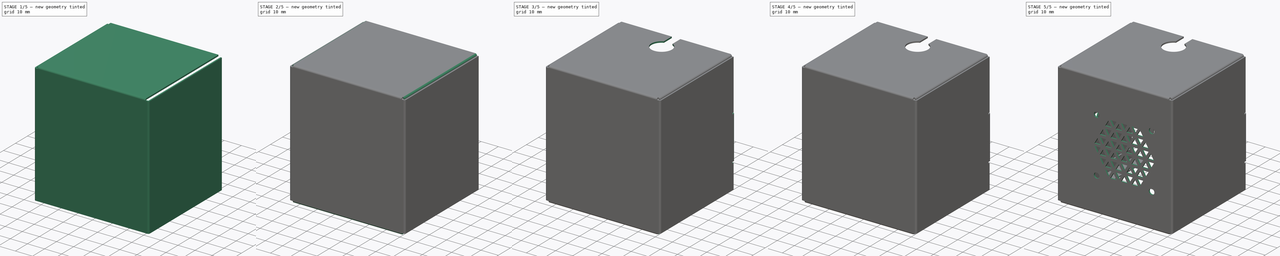
[diagram: build sequence overview — one tinted view per stage of 5, left to right]
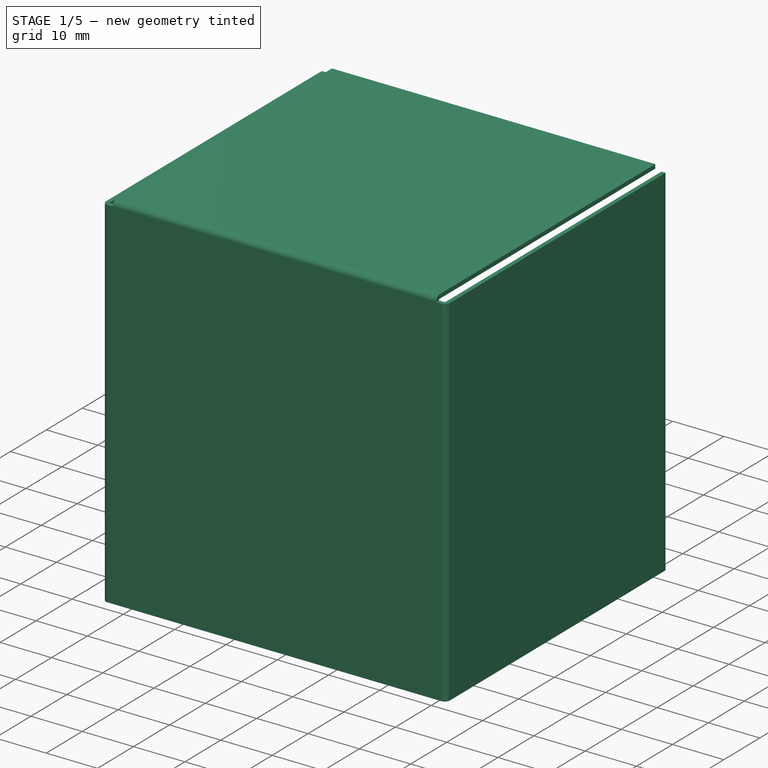
[diagram: stage 1 of 5 — iso view after this stage's code; geometry added in this stage tinted green]
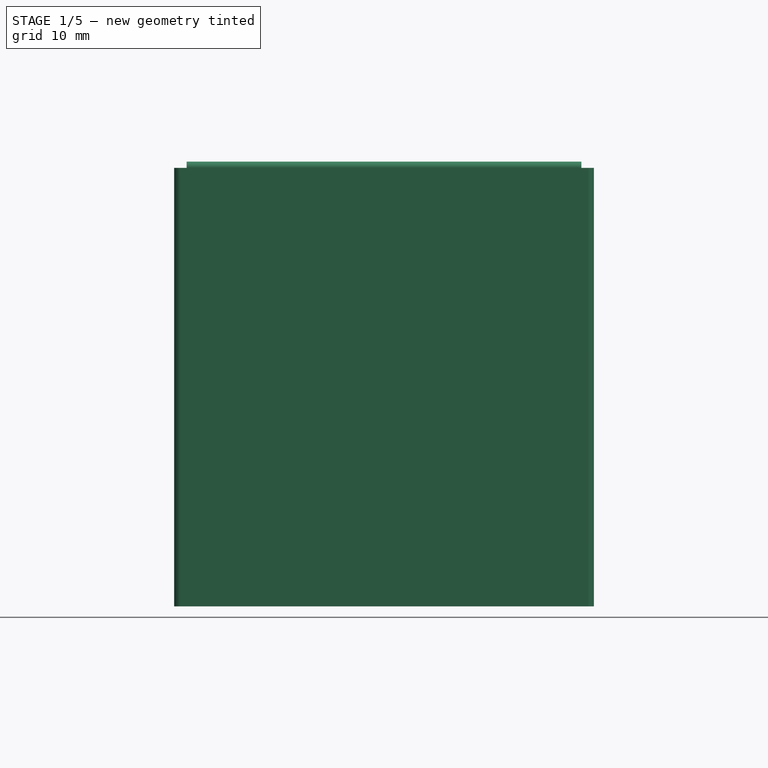
[diagram: stage 1 of 5 — front view after this stage's code; geometry added in this stage tinted green]
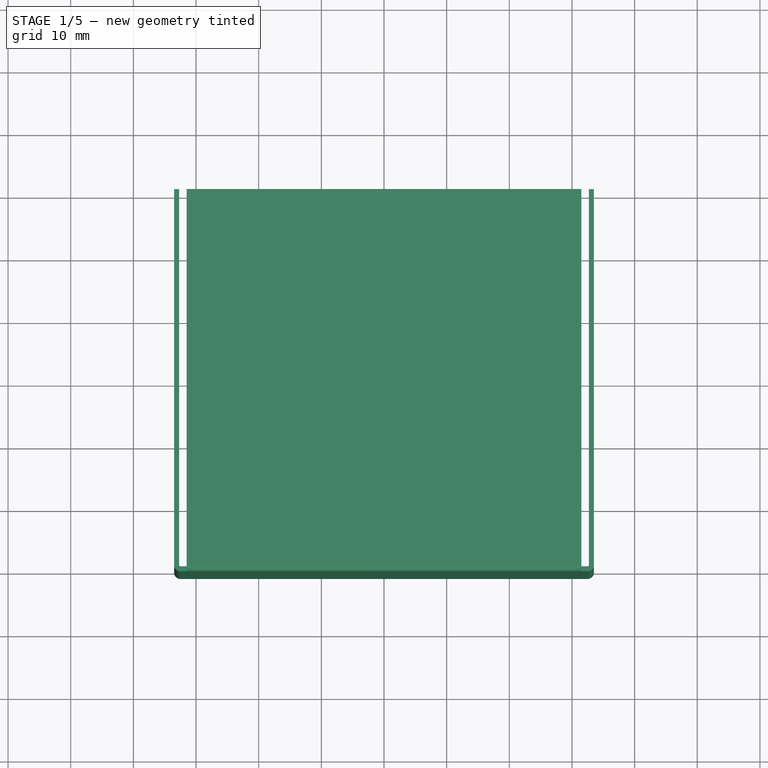
[diagram: stage 1 of 5 — top view after this stage's code; geometry added in this stage tinted green]
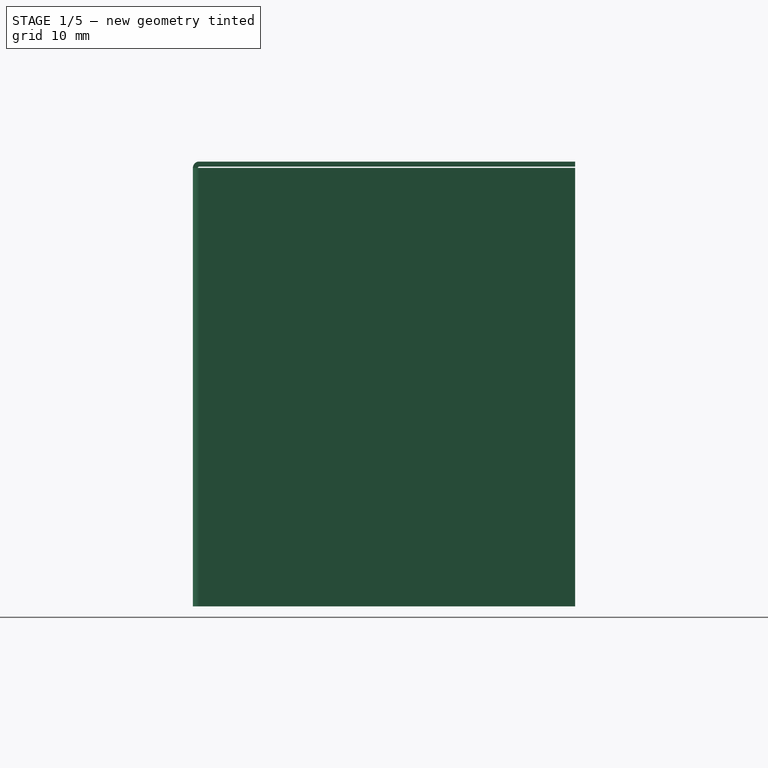
[diagram: stage 1 of 5 — right view after this stage's code; geometry added in this stage tinted green]
FCSTD DOCUMENT  (FreeCAD 0.19R24276 (Git))
Label: PX2_Hotend_housing_v3
License: All rights reserved
LicenseURL: http://en.wikipedia.org/wiki/All_rights_reserved
objects: PartDesign::FeaturePython×10, Sketcher::SketchObject×9, PartDesign::Pocket×7, PartDesign::Line×2, PartDesign::PolarPattern×2, PartDesign::Pad×1, PartDesign::Body×1, Part::Feature×1
note: 41 computed .brp shape members not serialized (recipe doc carries the construction recipe); baked Part::Feature solids carry a one-line shape summary decoded from their .brp

FEATURE [Sketcher::SketchObject] Sketch
  FullyConstrained = true
  MapMode = 5
  Placement = pos=(0,0,0) rot=(1,0,0;1.5708rad)
  Support = -> [XZ_Plane]
  sketch-geometry (4):
    g0: LineSegment StartX=-32.5 StartY=35 StartZ=0 EndX=32.5 EndY=35 EndZ=0
    g1: LineSegment StartX=32.5 StartY=35 StartZ=0 EndX=32.5 EndY=-35 EndZ=0
    g2: LineSegment StartX=32.5 StartY=-35 StartZ=0 EndX=-32.5 EndY=-35 EndZ=0
    g3: LineSegment StartX=-32.5 StartY=-35 StartZ=0 EndX=-32.5 EndY=35 EndZ=0
  constraints (11):
    c: Coincident(g0,g1)
    c: Coincident(g1,g2)
    c: Coincident(g2,g3)
    c: Coincident(g3,g0)
    c: Horizontal(g0)
    c: Horizontal(g2)
    c: Vertical(g1)
    c: Vertical(g3)
    c: Symmetric(g0,g1,g-1)
    c: DistanceX(g0,g0) = 65
    c: DistanceY(g1,g1) = 70
FEATURE [PartDesign::Pad] Pad
  Direction = (1,1,1)
  Length = 0.8
  Length2 = 100
  Placement = pos=(0,0,0) rot=(1,0,0;1.5708rad)
  Profile = -> Sketch
  Type = 0
FEATURE [PartDesign::FeaturePython] Bend  label="right_bend"  # WARN: FeaturePython — macro-defined, semantics opaque (R4)
  AutoMiter = true
  BaseFeature = -> Pad
  BendType = 0
  LengthList = [60]
  ReliefFactor = 0.7
  UseReliefFactor = false
  angle = 90
  baseObject = -> Pad [Edge7]
  bendAList = [90]
  extend1 = 0
  extend2 = 0
  gap1 = 0
  gap2 = 0
  invert = false
  kfactor = 0.5
  length = 60
  maxExtendDist = 5
  minGap = 0.1
  minReliefGap = 1
  miterangle1 = 0
  miterangle2 = 0
  offset = 0
  radius = 0.2
  reliefType = 0
  reliefd = 1
  reliefw = 0.8
  sketchflip = false
  sketchinvert = false
  unfold = false
FEATURE [PartDesign::FeaturePython] Bend001  label="left_bend"  # WARN: FeaturePython — macro-defined, semantics opaque (R4)
  AutoMiter = true
  BaseFeature = -> Bend
  BendType = 0
  LengthList = [60]
  ReliefFactor = 0.7
  UseReliefFactor = false
  angle = 90
  baseObject = -> Bend [Edge25]
  bendAList = [90]
  extend1 = 0
  extend2 = 0
  gap1 = 0
  gap2 = 0
  invert = false
  kfactor = 0.5
  length = 60
  maxExtendDist = 5
  minGap = 0.1
  minReliefGap = 1
  miterangle1 = 0
  miterangle2 = 0
  offset = 0
  radius = 0.2
  reliefType = 0
  reliefd = 1
  reliefw = 0.8
  sketchflip = false
  sketchinvert = false
  unfold = false
FEATURE [PartDesign::FeaturePython] Bend002  label="top_bend"  # WARN: FeaturePython — macro-defined, semantics opaque (R4)
  AutoMiter = true
  BaseFeature = -> Bend001
  BendType = 0
  LengthList = [60]
  ReliefFactor = 0.7
  UseReliefFactor = false
  angle = 90
  baseObject = -> Bend001 [Edge24]
  bendAList = [90]
  extend1 = 0
  extend2 = 0
  gap1 = 1
  gap2 = 1
  invert = false
  kfactor = 0.5
  length = 60
  maxExtendDist = 5
  minGap = 0.1
  minReliefGap = 1
  miterangle1 = 0
  miterangle2 = 0
  offset = 0
  radius = 0.2
  reliefType = 0
  reliefd = 1
  reliefw = 0.8
  sketchflip = false
  sketchinvert = false
  unfold = false
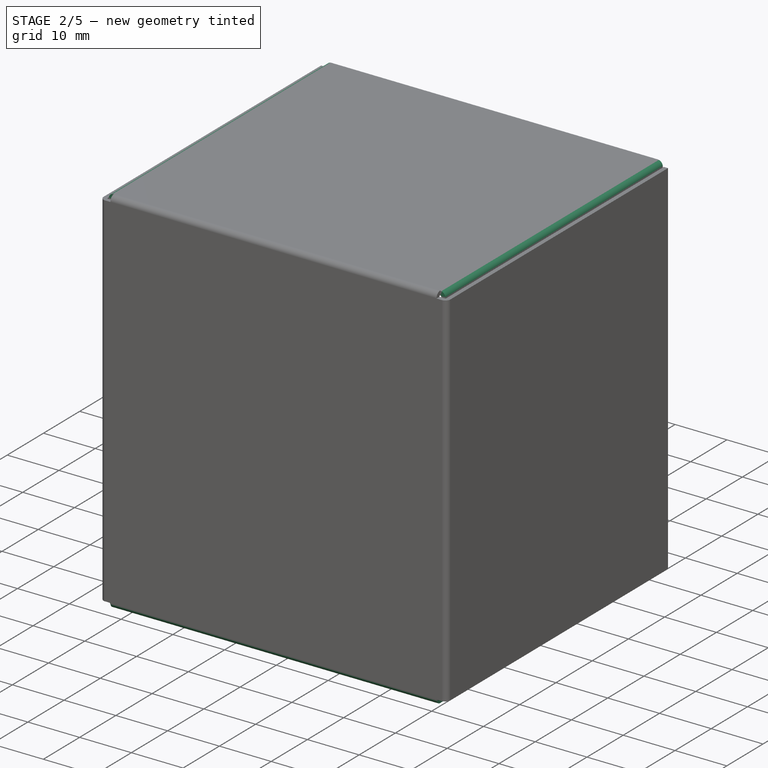
[diagram: stage 2 of 5 — iso view after this stage's code; geometry added in this stage tinted green]
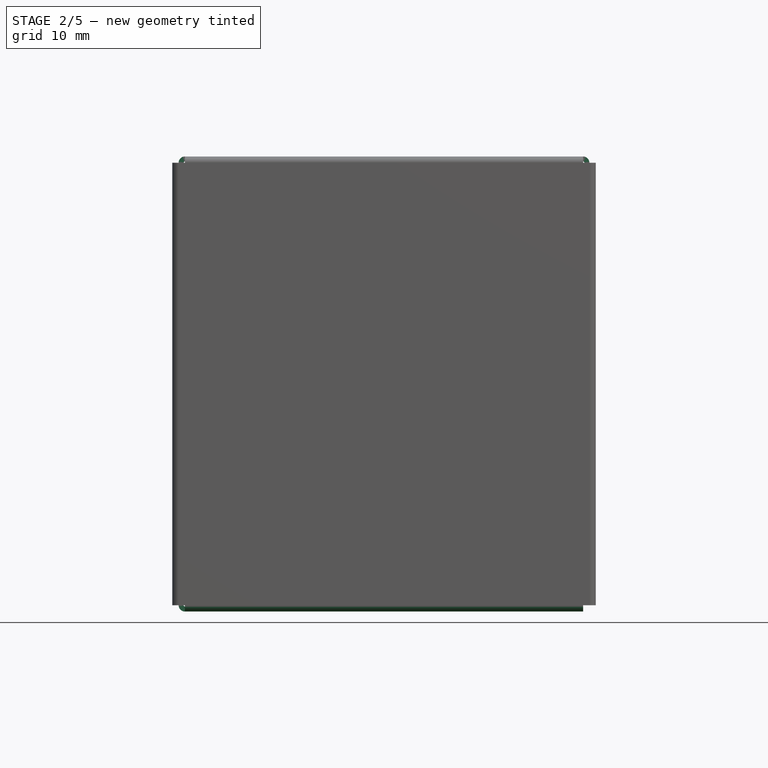
[diagram: stage 2 of 5 — front view after this stage's code; geometry added in this stage tinted green]
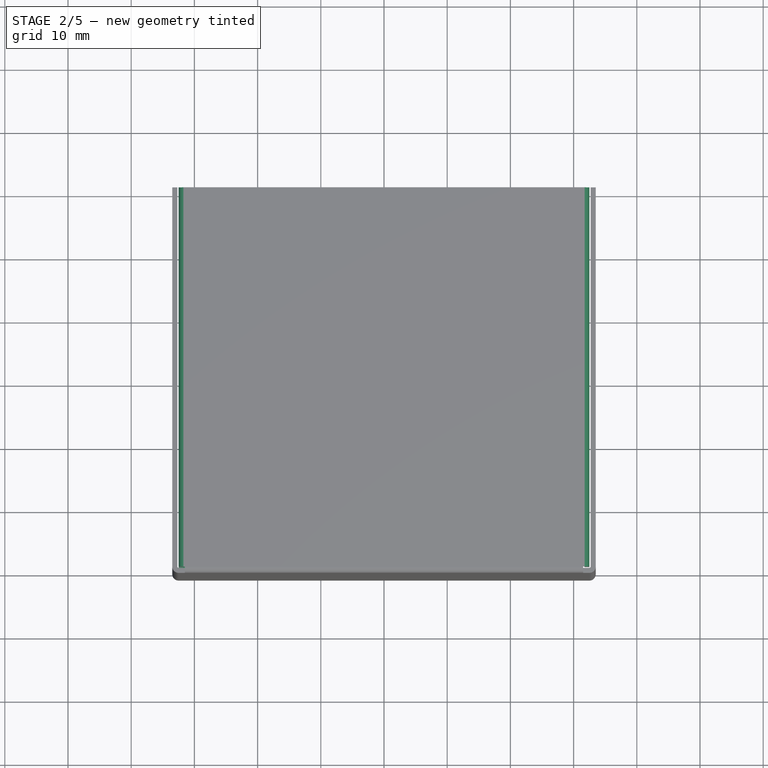
[diagram: stage 2 of 5 — top view after this stage's code; geometry added in this stage tinted green]
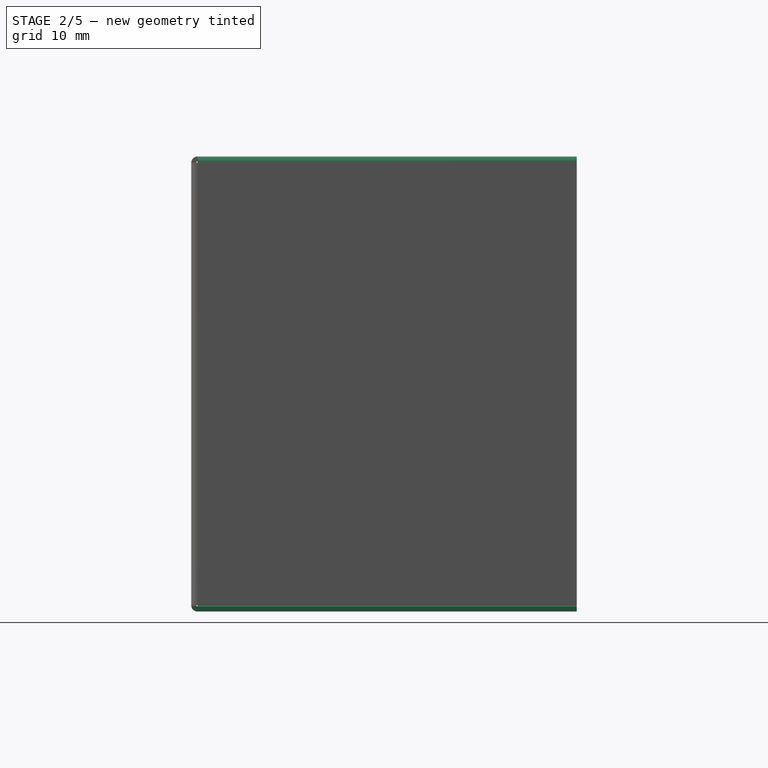
[diagram: stage 2 of 5 — right view after this stage's code; geometry added in this stage tinted green]
FEATURE [PartDesign::FeaturePython] Bend003  label="top_left_flap"  # WARN: FeaturePython — macro-defined, semantics opaque (R4)
  AutoMiter = true
  BaseFeature = -> Bend002
  BendType = 0
  LengthList = [5]
  ReliefFactor = 0.7
  UseReliefFactor = false
  angle = 90
  baseObject = -> Bend002 [Edge3]
  bendAList = [90]
  extend1 = 0
  extend2 = 0
  gap1 = 0
  gap2 = 0
  invert = false
  kfactor = 0.5
  length = 5
  maxExtendDist = 5
  minGap = 0.1
  minReliefGap = 1
  miterangle1 = 0
  miterangle2 = 0
  offset = 0
  radius = 0.2
  reliefType = 0
  reliefd = 1
  reliefw = 0.8
  sketchflip = false
  sketchinvert = false
  unfold = false
FEATURE [PartDesign::FeaturePython] Bend004  label="top_right_flap"  # WARN: FeaturePython — macro-defined, semantics opaque (R4)
  AutoMiter = true
  BaseFeature = -> Bend003
  BendType = 0
  LengthList = [5]
  ReliefFactor = 0.7
  UseReliefFactor = false
  angle = 90
  baseObject = -> Bend003 [Edge26]
  bendAList = [90]
  extend1 = 0
  extend2 = 0
  gap1 = 0
  gap2 = 0
  invert = false
  kfactor = 0.5
  length = 5
  maxExtendDist = 5
  minGap = 0.1
  minReliefGap = 1
  miterangle1 = 0
  miterangle2 = 0
  offset = 0
  radius = 0.2
  reliefType = 0
  reliefd = 1
  reliefw = 0.8
  sketchflip = false
  sketchinvert = false
  unfold = false
FEATURE [PartDesign::FeaturePython] Bend005  label="bottom_bend"  # WARN: FeaturePython — macro-defined, semantics opaque (R4)
  AutoMiter = true
  BaseFeature = -> Bend004
  BendType = 0
  LengthList = [60]
  ReliefFactor = 0.7
  UseReliefFactor = false
  angle = 90
  baseObject = -> Bend004 [Edge52]
  bendAList = [90]
  extend1 = 0
  extend2 = 0
  gap1 = 1
  gap2 = 1
  invert = false
  kfactor = 0.5
  length = 60
  maxExtendDist = 5
  minGap = 0.1
  minReliefGap = 1
  miterangle1 = 0
  miterangle2 = 0
  offset = 0
  radius = 0.2
  reliefType = 0
  reliefd = 1
  reliefw = 0.8
  sketchflip = false
  sketchinvert = false
  unfold = false
FEATURE [PartDesign::FeaturePython] Bend006  label="bottom_left_flap"  # WARN: FeaturePython — macro-defined, semantics opaque (R4)
  AutoMiter = true
  BaseFeature = -> Bend005
  BendType = 0
  LengthList = [5]
  ReliefFactor = 0.7
  UseReliefFactor = false
  angle = 90
  baseObject = -> Bend005 [Edge12]
  bendAList = [90]
  extend1 = 0
  extend2 = 0
  gap1 = 0
  gap2 = 0
  invert = false
  kfactor = 0.5
  length = 5
  maxExtendDist = 5
  minGap = 0.1
  minReliefGap = 1
  miterangle1 = 0
  miterangle2 = 0
  offset = 0
  radius = 0.2
  reliefType = 0
  reliefd = 1
  reliefw = 0.8
  sketchflip = false
  sketchinvert = false
  unfold = false
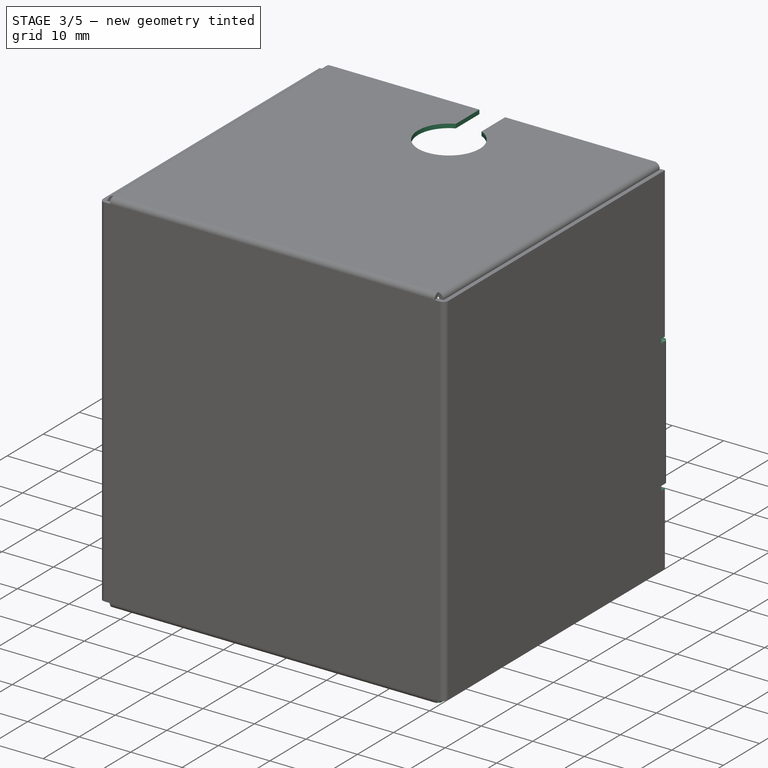
[diagram: stage 3 of 5 — iso view after this stage's code; geometry added in this stage tinted green]
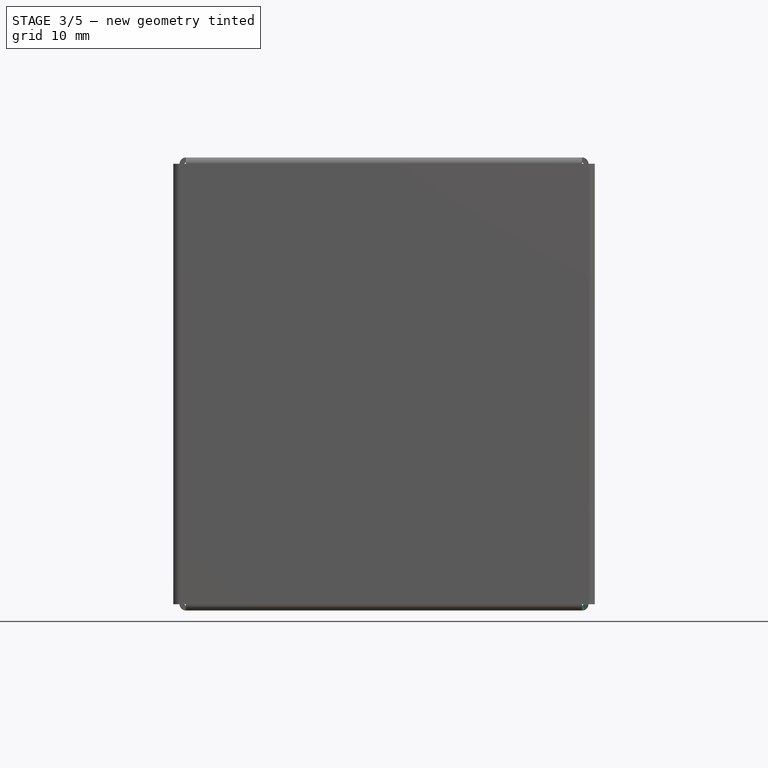
[diagram: stage 3 of 5 — front view after this stage's code; geometry added in this stage tinted green]
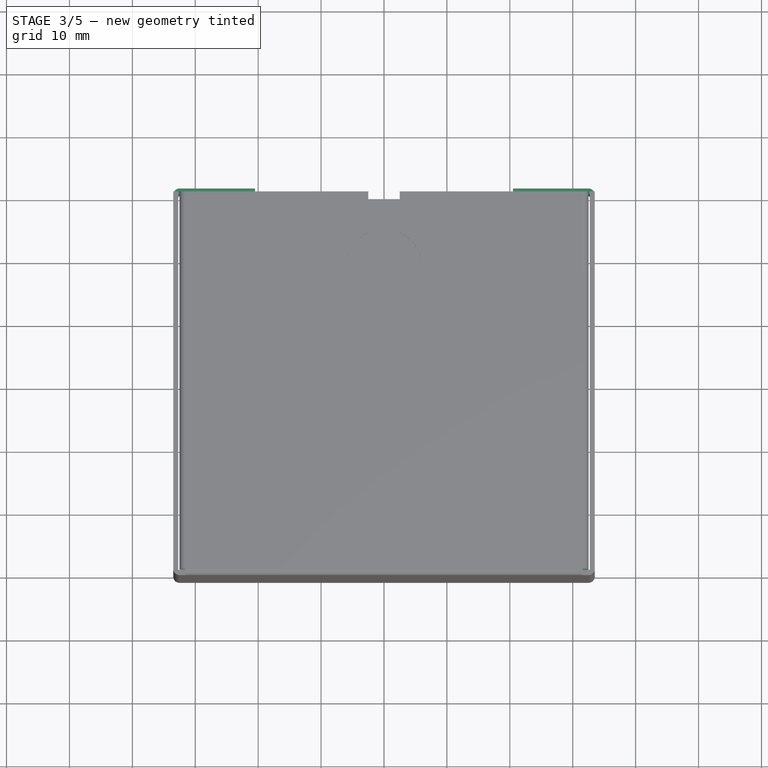
[diagram: stage 3 of 5 — top view after this stage's code; geometry added in this stage tinted green]
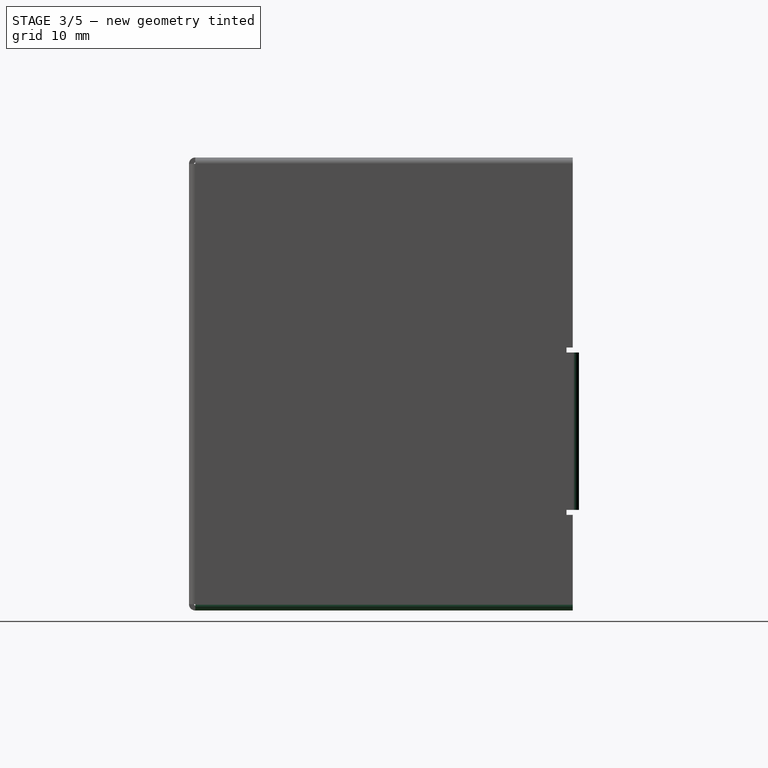
[diagram: stage 3 of 5 — right view after this stage's code; geometry added in this stage tinted green]
FEATURE [PartDesign::FeaturePython] Bend007  label="bottom_right_flap"  # WARN: FeaturePython — macro-defined, semantics opaque (R4)
  AutoMiter = true
  BaseFeature = -> Bend006
  BendType = 0
  LengthList = [5]
  ReliefFactor = 0.7
  UseReliefFactor = false
  angle = 90
  baseObject = -> Bend006 [Edge25]
  bendAList = [90]
  extend1 = 0
  extend2 = 0
  gap1 = 0
  gap2 = 0
  invert = false
  kfactor = 0.5
  length = 5
  maxExtendDist = 5
  minGap = 0.1
  minReliefGap = 1
  miterangle1 = 0
  miterangle2 = 0
  offset = 0
  radius = 0.2
  reliefType = 0
  reliefd = 1
  reliefw = 0.8
  sketchflip = false
  sketchinvert = false
  unfold = false
FEATURE [PartDesign::FeaturePython] Bend008  label="back_left_holder"  # WARN: FeaturePython — macro-defined, semantics opaque (R4)
  AutoMiter = true
  BaseFeature = -> Bend007
  BendType = 0
  LengthList = [12]
  ReliefFactor = 0.7
  UseReliefFactor = false
  angle = 90
  baseObject = -> Bend007 [Edge106]
  bendAList = [90]
  extend1 = 0
  extend2 = 0
  gap1 = 15
  gap2 = 30
  invert = false
  kfactor = 0.5
  length = 12
  maxExtendDist = 5
  minGap = 0.1
  minReliefGap = 1
  miterangle1 = 0
  miterangle2 = 0
  offset = 0
  radius = 0.2
  reliefType = 0
  reliefd = 1
  reliefw = 0.8
  sketchflip = false
  sketchinvert = false
  unfold = false
FEATURE [PartDesign::FeaturePython] Bend009  label="back_right_holder"  # WARN: FeaturePython — macro-defined, semantics opaque (R4)
  AutoMiter = true
  BaseFeature = -> Bend008
  BendType = 0
  LengthList = [12]
  ReliefFactor = 0.7
  UseReliefFactor = false
  angle = 90
  baseObject = -> Bend008 [Edge108]
  bendAList = [90]
  extend1 = 0
  extend2 = 0
  gap1 = 30
  gap2 = 15
  invert = false
  kfactor = 0.5
  length = 12
  maxExtendDist = 5
  minGap = 0.1
  minReliefGap = 1
  miterangle1 = 0
  miterangle2 = 0
  offset = 0
  radius = 0.2
  reliefType = 0
  reliefd = 1
  reliefw = 0.8
  sketchflip = false
  sketchinvert = false
  unfold = false
FEATURE [Sketcher::SketchObject] Sketch001
  ExternalGeometry = -> [Bend009]
  FullyConstrained = true
  MapMode = 5
  Placement = pos=(0,2.41e-14,36) rot=(0,0,1;0rad)
  Support = -> [Bend009]
  sketch-geometry (4):
    g0: LineSegment StartX=-2.5 StartY=60.2 StartZ=0 EndX=2.5 EndY=60.2 EndZ=0
    g1: LineSegment StartX=2.5 StartY=60.2 StartZ=0 EndX=2.5 EndY=53.6544 EndZ=0
    g2: LineSegment StartX=-2.5 StartY=53.6544 StartZ=0 EndX=-2.5 EndY=60.2 EndZ=0
    g3: ArcOfCircle CenterX=0 CenterY=48.2 CenterZ=0 NormalX=0 NormalY=0 NormalZ=1 AngleXU=0 Radius=6 StartAngle=2.00057 EndAngle=7.42421
  constraints (13):
    c: Coincident(g0,g1)
    c: Coincident(g2,g0)
    c: Horizontal(g0)
    c: Vertical(g1)
    c: Vertical(g2)
    c: PointOnObject(g0,g-3)
    c: PointOnObject(g3,g-2)
    c: Coincident(g3,g2)
    c: Coincident(g3,g1)
    c: Equal(g1,g2)
    c: Diameter(g3) = 12
    c: DistanceY(g3,g0) = 12
    c: DistanceX(g2,g1) = 5
FEATURE [PartDesign::Pocket] Pocket  label="top_cable_pass"
  BaseFeature = -> Bend009
  Length = 5
  Length2 = 100
  Profile = -> Sketch001
  Type = 0
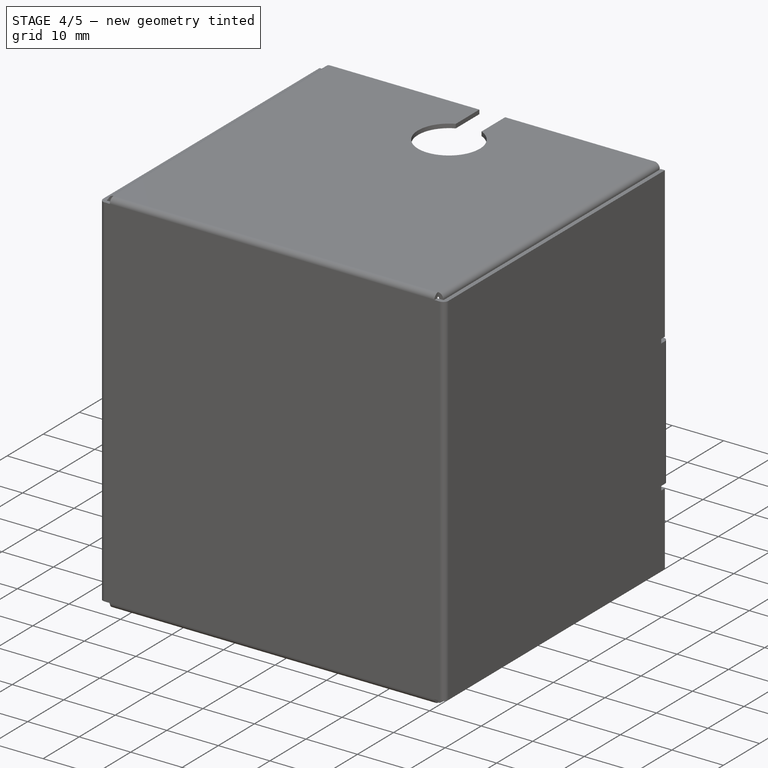
[diagram: stage 4 of 5 — iso view after this stage's code; geometry added in this stage tinted green]
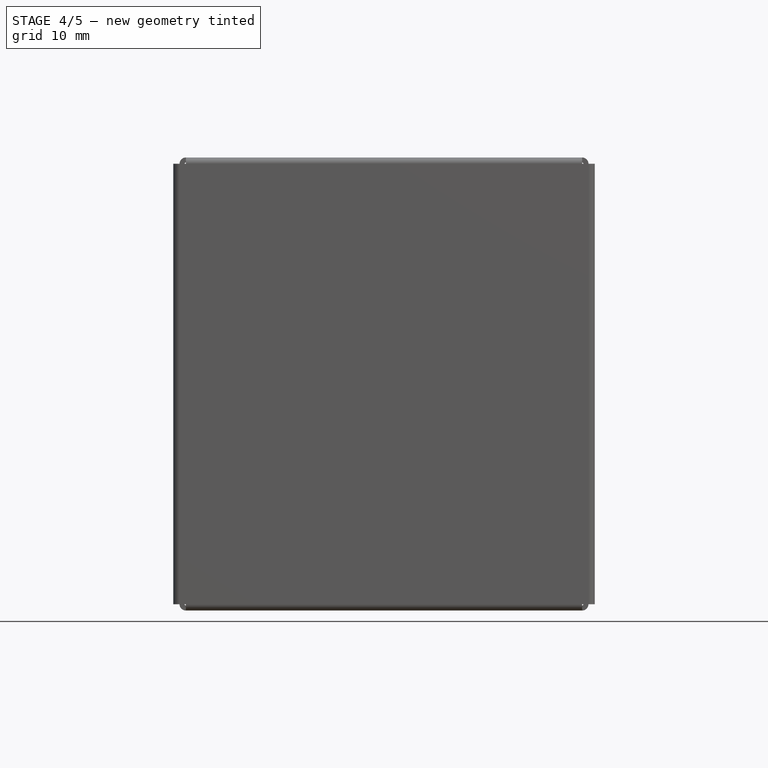
[diagram: stage 4 of 5 — front view after this stage's code; geometry added in this stage tinted green]
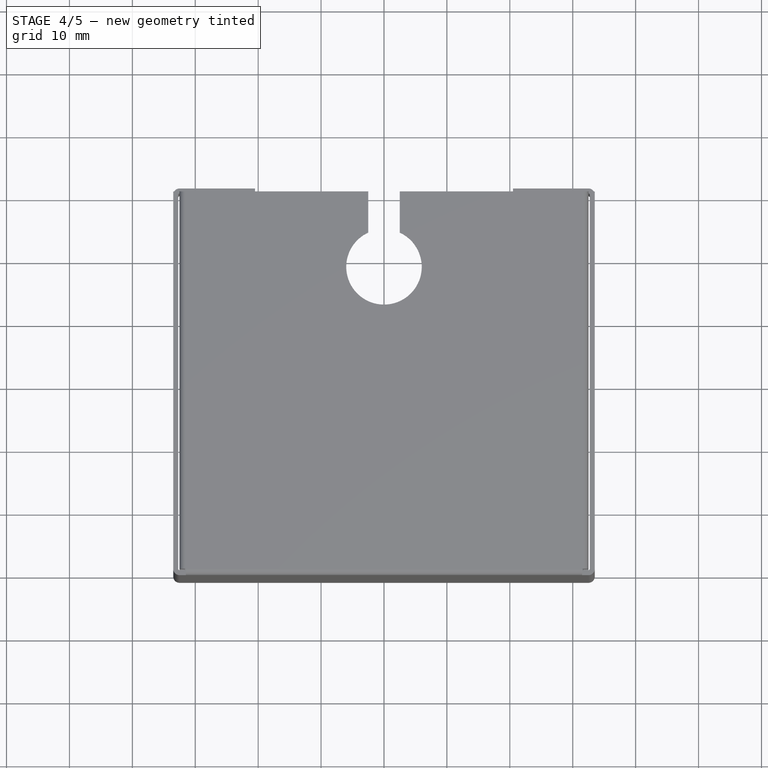
[diagram: stage 4 of 5 — top view after this stage's code; geometry added in this stage tinted green]
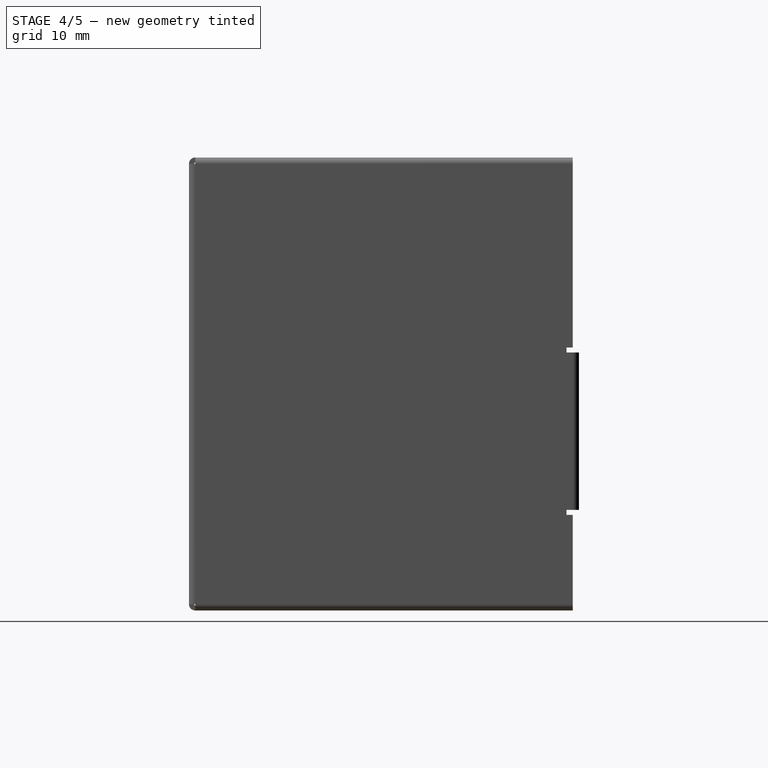
[diagram: stage 4 of 5 — right view after this stage's code; geometry added in this stage tinted green]
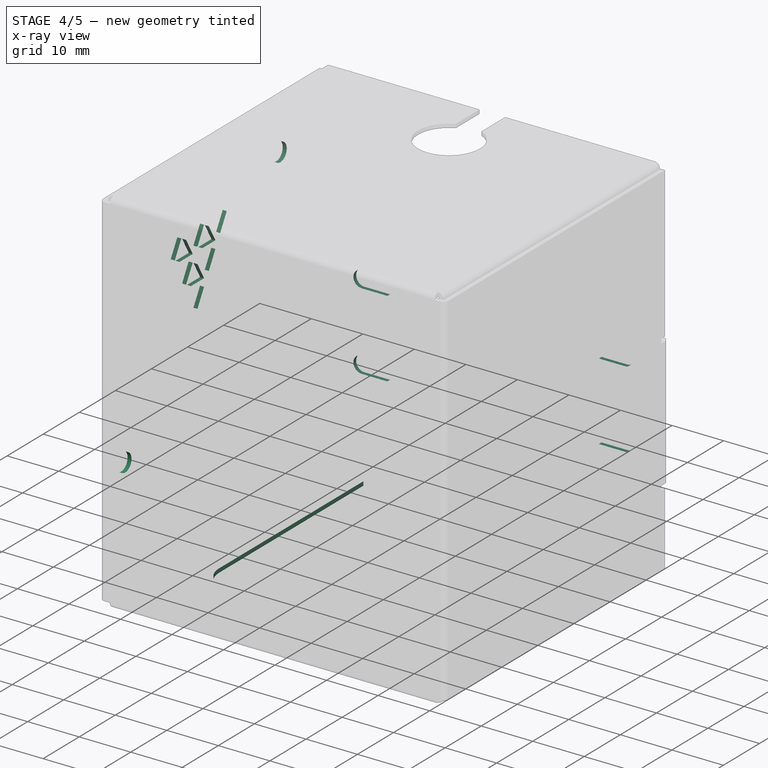
[diagram: stage 4 of 5 — x-ray composite at the iso view; earlier geometry ghosted, this stage's added geometry solid]
FEATURE [Sketcher::SketchObject] Sketch002
  ExternalGeometry = -> [Pocket]
  FullyConstrained = true
  MapMode = 5
  Placement = pos=(0,61.2,-6.12e-14) rot=(0,0.707107,0.707107;3.14159rad)
  Support = -> [Pocket]
  sketch-geometry (20):
    g0: LineSegment StartX=-20.5 StartY=1.6 StartZ=0 EndX=-25.5 EndY=1.6 EndZ=0
    g1: LineSegment StartX=-25.5 StartY=-1.6 StartZ=0 EndX=-20.5 EndY=-1.6 EndZ=0
    g2: LineSegment StartX=-20.5 StartY=-1.6 StartZ=0 EndX=-20.5 EndY=1.6 EndZ=0
    g3: LineSegment StartX=-20.5 StartY=-13.4 StartZ=0 EndX=-25.5 EndY=-13.4 EndZ=0
    g4: LineSegment StartX=-25.5 StartY=-16.6 StartZ=0 EndX=-20.5 EndY=-16.6 EndZ=0
    g5: LineSegment StartX=-20.5 StartY=-16.6 StartZ=0 EndX=-20.5 EndY=-13.4 EndZ=0
    g6: LineSegment StartX=20.5 StartY=1.6 StartZ=0 EndX=25.5 EndY=1.6 EndZ=0
    g7: LineSegment StartX=25.5 StartY=-1.6 StartZ=0 EndX=20.5 EndY=-1.6 EndZ=0
    g8: LineSegment StartX=20.5 StartY=-1.6 StartZ=0 EndX=20.5 EndY=1.6 EndZ=0
    g9: LineSegment StartX=20.5 StartY=-13.4 StartZ=0 EndX=25.5 EndY=-13.4 EndZ=0
    g10: LineSegment StartX=25.5 StartY=-16.6 StartZ=0 EndX=20.5 EndY=-16.6 EndZ=0
    g11: LineSegment StartX=20.5 StartY=-16.6 StartZ=0 EndX=20.5 EndY=-13.4 EndZ=0
    g12: ArcOfCircle CenterX=-25.5 CenterY=1.2e-15 CenterZ=0 NormalX=0 NormalY=0 NormalZ=1 AngleXU=0 Radius=1.6 StartAngle=1.5708 EndAngle=4.71239
    g13: ArcOfCircle CenterX=-25.5 CenterY=-15 CenterZ=0 NormalX=0 NormalY=0 NormalZ=1 AngleXU=0 Radius=1.6 StartAngle=1.5708 EndAngle=4.71239
    g14: ArcOfCircle CenterX=25.5 CenterY=1.81e-14 CenterZ=0 NormalX=0 NormalY=0 NormalZ=1 AngleXU=0 Radius=1.6 StartAngle=4.71239 EndAngle=7.85398
    g15: ArcOfCircle CenterX=25.5 CenterY=-15 CenterZ=0 NormalX=0 NormalY=0 NormalZ=1 AngleXU=0 Radius=1.6 StartAngle=4.71239 EndAngle=7.85398
    g16: LineSegment StartX=25.5 StartY=1.6 StartZ=0 EndX=25.5 EndY=-1.6 EndZ=0
    g17: LineSegment StartX=25.5 StartY=-13.4 StartZ=0 EndX=25.5 EndY=-16.6 EndZ=0
    g18: LineSegment StartX=-25.5 StartY=1.6 StartZ=0 EndX=-25.5 EndY=-1.6 EndZ=0
    g19: LineSegment StartX=-25.5 StartY=-13.4 StartZ=0 EndX=-25.5 EndY=-16.6 EndZ=0
  constraints (60):
    c: Coincident(g1,g2)
    c: Coincident(g2,g0)
    c: Horizontal(g0)
    c: Horizontal(g1)
    c: Vertical(g2)
    c: PointOnObject(g0,g-3)
    c: Coincident(g4,g5)
    c: Coincident(g5,g3)
    c: Horizontal(g3)
    c: Horizontal(g4)
    c: Vertical(g5)
    c: PointOnObject(g3,g-3)
    c: Coincident(g7,g8)
    c: Coincident(g8,g6)
    c: Horizontal(g6)
    c: Horizontal(g7)
    c: Vertical(g8)
    c: PointOnObject(g6,g-4)
    c: Coincident(g10,g11)
    c: Coincident(g11,g9)
    c: Horizontal(g9)
    c: Horizontal(g10)
    c: Vertical(g11)
    c: PointOnObject(g9,g-4)
    c: Equal(g0,g1)
    c: Equal(g1,g3)
    c: Equal(g3,g4)
    c: Equal(g4,g10)
    c: Equal(g10,g9)
    c: Equal(g9,g7)
    c: Equal(g7,g6)
    c: Coincident(g12,g0)
    c: Coincident(g12,g1)
    c: Coincident(g13,g3)
    c: Coincident(g13,g4)
    c: Coincident(g14,g6)
    c: Coincident(g14,g7)
    c: Coincident(g15,g9)
    c: Coincident(g15,g10)
    c: Equal(g11,g8)
    c: Equal(g8,g2)
    c: Equal(g2,g5)
    c: DistanceY(g8,g8) = 3.2
    c: DistanceY(g13,g12) = 15
    c: DistanceY(g15,g14) = 15
    c: Coincident(g16,g6)
    c: Coincident(g16,g7)
    c: Coincident(g17,g9)
    c: Coincident(g17,g10)
    c: Coincident(g18,g0)
    c: Coincident(g18,g1)
    c: Coincident(g19,g3)
    c: Coincident(g19,g4)
    c: PointOnObject(g12,g18)
    c: PointOnObject(g13,g19)
    c: PointOnObject(g15,g17)
    c: PointOnObject(g14,g16)
    c: DistanceY(g12,g-3) = 5
    c: DistanceY(g14,g-4) = 5
    c: DistanceX(g12,g0) = 5
FEATURE [PartDesign::Pocket] Pocket001  label="back_screw_place"
  BaseFeature = -> Pocket
  Length = 5
  Length2 = 100
  Profile = -> Sketch002
  Type = 0
FEATURE [Sketcher::SketchObject] Sketch003
  ExternalGeometry = -> [Pocket001]
  FullyConstrained = true
  MapMode = 5
  Placement = pos=(0,-2.41e-14,-36) rot=(1,0,0;3.14159rad)
  Support = -> [Pocket001]
  sketch-geometry (6):
    g0: LineSegment StartX=-25 StartY=-60.2 StartZ=0 EndX=25 EndY=-60.2 EndZ=0
    g1: LineSegment StartX=25 StartY=-60.2 StartZ=0 EndX=25 EndY=-20.2 EndZ=0
    g2: LineSegment StartX=20 StartY=-15.2 StartZ=0 EndX=-20 EndY=-15.2 EndZ=0
    g3: LineSegment StartX=-25 StartY=-20.2 StartZ=0 EndX=-25 EndY=-60.2 EndZ=0
    g4: ArcOfCircle CenterX=-20 CenterY=-20.2 CenterZ=0 NormalX=0 NormalY=0 NormalZ=1 AngleXU=0 Radius=5 StartAngle=1.5708 EndAngle=3.14159
    g5: ArcOfCircle CenterX=20 CenterY=-20.2 CenterZ=0 NormalX=0 NormalY=0 NormalZ=1 AngleXU=0 Radius=5 StartAngle=0 EndAngle=1.5708
  constraints (16):
    c: Coincident(g0,g1)
    c: Coincident(g3,g0)
    c: Horizontal(g0)
    c: Horizontal(g2)
    c: Vertical(g1)
    c: Vertical(g3)
    c: Tangent(g2,g4) = -1.5708
    c: Tangent(g3,g4) = -1.5708
    c: Tangent(g1,g5) = -1.5708
    c: Tangent(g2,g5) = -1.5708
    c: Equal(g4,g5)
    c: Diameter(g5) = 10
    c: DistanceY(g-3,g2) = 45
    c: DistanceX(g0,g0) = 50
    c: DistanceX(g0,g-1) = 25
    c: PointOnObject(g0,g-3)
FEATURE [PartDesign::Pocket] Pocket002  label="bottom_hotend_spacer"
  BaseFeature = -> Pocket001
  Length = 5
  Length2 = 100
  Profile = -> Sketch003
  Type = 0
FEATURE [Sketcher::SketchObject] Sketch004
  ExternalGeometry = -> [Pocket002]
  FullyConstrained = true
  MapMode = 5
  Placement = pos=(-33.5,0,-1.11e-14) rot=(0.57735,-0.57735,-0.57735;2.0944rad)
  Support = -> [Pocket002]
  sketch-geometry (6):
    g0: LineSegment StartX=-48.2 StartY=25 StartZ=0 EndX=-5.2 EndY=25 EndZ=0
    g1: LineSegment StartX=-5.2 StartY=25 StartZ=0 EndX=-5.2 EndY=-13 EndZ=0
    g2: LineSegment StartX=-5.2 StartY=-13 StartZ=0 EndX=-48.2 EndY=-13 EndZ=0
    g3: LineSegment StartX=-48.2 StartY=-13 StartZ=0 EndX=-48.2 EndY=25 EndZ=0
    g4: Circle CenterX=-48.2 CenterY=25 CenterZ=0 NormalX=0 NormalY=0 NormalZ=1 AngleXU=0 Radius=1.75
    g5: Circle CenterX=-5.2 CenterY=-13 CenterZ=0 NormalX=0 NormalY=0 NormalZ=1 AngleXU=0 Radius=1.75
  constraints (16):
    c: Coincident(g0,g1)
    c: Coincident(g1,g2)
    c: Coincident(g2,g3)
    c: Coincident(g3,g0)
    c: Horizontal(g0)
    c: Horizontal(g2)
    c: Vertical(g1)
    c: Vertical(g3)
    c: DistanceY(g3,g3) = 38
    c: DistanceX(g0,g0) = 43
    c: Coincident(g4,g0)
    c: Coincident(g5,g1)
    c: Diameter(g4) = 3.5
    c: Equal(g4,g5)
    c: DistanceX(g5,g-3) = 5
    c: DistanceY(g0,g-3) = 10
FEATURE [PartDesign::Pocket] Pocket003  label="nozzle_fan_screws"
  BaseFeature = -> Pocket002
  Length = 5
  Length2 = 100
  Profile = -> Sketch004
  Type = 0
FEATURE [Sketcher::SketchObject] Sketch005
  ExternalGeometry = -> [Pocket003]
  FullyConstrained = true
  MapMode = 5
  Placement = pos=(-33.5,0,-1.11e-14) rot=(0.57735,-0.57735,-0.57735;2.0944rad)
  Support = -> [Pocket003]
  sketch-geometry (47):
    g0: LineSegment StartX=-48.2 StartY=25 StartZ=0 EndX=-5.2 EndY=25 EndZ=0
    g1: LineSegment StartX=-5.2 StartY=25 StartZ=0 EndX=-5.2 EndY=-13 EndZ=0
    g2: LineSegment StartX=-5.2 StartY=-13 StartZ=0 EndX=-48.2 EndY=-13 EndZ=0
    g3: LineSegment StartX=-48.2 StartY=-13 StartZ=0 EndX=-48.2 EndY=25 EndZ=0
    g4: LineSegment StartX=-48.2 StartY=5 StartZ=0 EndX=-5.2 EndY=5 EndZ=0
    g5: LineSegment StartX=-25.2 StartY=25 StartZ=0 EndX=-25.2 EndY=-13 EndZ=0
    g6: LineSegment StartX=-27.0455 StartY=20.3897 StartZ=0 EndX=-23.3545 EndY=20.3897 EndZ=0
    g7: LineSegment StartX=-27.0455 StartY=20.3897 StartZ=0 EndX=-25.2 EndY=17.1932 EndZ=0
    g8: LineSegment StartX=-25.2 StartY=17.1932 StartZ=0 EndX=-23.3545 EndY=20.3897 EndZ=0
    g9: Circle CenterX=-25.2 CenterY=5 CenterZ=0 NormalX=0 NormalY=0 NormalZ=1 AngleXU=0 Radius=15.5
    g10: LineSegment StartX=-28.3446 StartY=19.6397 StartZ=0 EndX=-30.1901 EndY=16.4432 EndZ=0
    g11: LineSegment StartX=-30.1901 StartY=16.4432 StartZ=0 EndX=-26.499 EndY=16.4432 EndZ=0
    g12: LineSegment StartX=-26.499 StartY=16.4432 StartZ=0 EndX=-28.3446 EndY=19.6397 EndZ=0
    g13: LineSegment StartX=-25.2 StartY=14.1932 StartZ=0 EndX=-27.0455 EndY=10.9966 EndZ=0
    g14: LineSegment StartX=-27.0455 StartY=10.9966 StartZ=0 EndX=-23.3545 EndY=10.9966 EndZ=0
    g15: LineSegment StartX=-23.3545 StartY=10.9966 StartZ=0 EndX=-25.2 EndY=14.1932 EndZ=0
    g16: LineSegment StartX=-27.0455 StartY=9.49658 StartZ=0 EndX=-23.3545 EndY=9.49658 EndZ=0
    g17: LineSegment StartX=-23.3545 StartY=9.49658 StartZ=0 EndX=-25.2 EndY=6.3 EndZ=0
    g18: LineSegment StartX=-25.2 StartY=6.3 StartZ=0 EndX=-27.0455 EndY=9.49658 EndZ=0
    g19: LineSegment StartX=-30.1901 StartY=14.9432 StartZ=0 EndX=-26.499 EndY=14.9432 EndZ=0
    g20: LineSegment StartX=-30.1901 StartY=14.9432 StartZ=0 EndX=-28.3446 EndY=11.7466 EndZ=0
    g21: LineSegment StartX=-28.3446 StartY=11.7466 StartZ=0 EndX=-26.499 EndY=14.9432 EndZ=0
    g22: LineSegment StartX=-30.1901 StartY=16.4432 StartZ=0 EndX=-30.1901 EndY=14.9432 EndZ=0
    g23: LineSegment StartX=-27.0455 StartY=10.9966 StartZ=0 EndX=-27.0455 EndY=9.49658 EndZ=0
    g24: LineSegment StartX=-28.3446 StartY=11.7466 StartZ=0 EndX=-27.0455 EndY=10.9966 EndZ=0
    g25: LineSegment StartX=-28.3446 StartY=19.6397 StartZ=0 EndX=-27.0455 EndY=20.3897 EndZ=0
    g26: LineSegment StartX=-30.1901 StartY=14.9432 StartZ=0 EndX=-25.2 EndY=6.3 EndZ=0
    g27: Circle CenterX=-25.2 CenterY=5 CenterZ=0 NormalX=0 NormalY=0 NormalZ=1 AngleXU=0 Radius=0.005
    g28: LineSegment StartX=-23.901 StartY=14.9432 StartZ=0 EndX=-20.2099 EndY=14.9432 EndZ=0
    g29: LineSegment StartX=-20.2099 StartY=14.9432 StartZ=0 EndX=-22.0554 EndY=11.7466 EndZ=0
    g30: LineSegment StartX=-22.0554 StartY=11.7466 StartZ=0 EndX=-23.901 EndY=14.9432 EndZ=0
    g31: LineSegment StartX=-23.901 StartY=16.4432 StartZ=0 EndX=-20.2099 EndY=16.4432 EndZ=0
    g32: LineSegment StartX=-20.2099 StartY=16.4432 StartZ=0 EndX=-22.0554 EndY=19.6397 EndZ=0
    g33: LineSegment StartX=-22.0554 StartY=19.6397 StartZ=0 EndX=-23.901 EndY=16.4432 EndZ=0
    g34: LineSegment StartX=-23.3545 StartY=10.9966 StartZ=0 EndX=-22.0554 EndY=11.7466 EndZ=0
    g35: LineSegment StartX=-23.3545 StartY=20.3897 StartZ=0 EndX=-22.0554 EndY=19.6397 EndZ=0
    g36: LineSegment StartX=-20.2099 StartY=16.4432 StartZ=0 EndX=-20.2099 EndY=14.9432 EndZ=0
    g37: LineSegment StartX=-31.4892 StartY=17.1932 StartZ=0 EndX=-29.6436 EndY=20.3897 EndZ=0
    g38: LineSegment StartX=-29.6436 StartY=20.3897 StartZ=0 EndX=-33.3347 EndY=20.3897 EndZ=0
    g39: LineSegment StartX=-33.3347 StartY=20.3897 StartZ=0 EndX=-31.4892 EndY=17.1932 EndZ=0
    g40: LineSegment StartX=-31.4892 StartY=17.1932 StartZ=0 EndX=-30.1901 EndY=16.4432 EndZ=0
    g41: LineSegment StartX=-29.6436 StartY=20.3897 StartZ=0 EndX=-28.3446 EndY=19.6397 EndZ=0
    g42: LineSegment StartX=-20.7564 StartY=20.3897 StartZ=0 EndX=-17.0653 EndY=20.3897 EndZ=0
    g43: LineSegment StartX=-17.0653 StartY=20.3897 StartZ=0 EndX=-18.9108 EndY=17.1932 EndZ=0
    g44: LineSegment StartX=-18.9108 StartY=17.1932 StartZ=0 EndX=-20.7564 EndY=20.3897 EndZ=0
    g45: LineSegment StartX=-22.0554 StartY=19.6397 StartZ=0 EndX=-20.7564 EndY=20.3897 EndZ=0
    g46: LineSegment StartX=-20.2099 StartY=16.4432 StartZ=0 EndX=-18.9108 EndY=17.1932 EndZ=0
  constraints (128):
    c: Coincident(g0,g1)
    c: Coincident(g1,g2)
    c: Coincident(g2,g3)
    c: Coincident(g3,g0)
    c: Horizontal(g0)
    c: Horizontal(g2)
    c: Vertical(g1)
    c: Vertical(g3)
    c: Coincident(g0,g-3)
    c: Coincident(g1,g-4)
    c: PointOnObject(g4,g3)
    c: PointOnObject(g4,g1)
    c: Horizontal(g4)
    c: PointOnObject(g5,g0)
    c: PointOnObject(g5,g2)
    c: Vertical(g5)
    c: DistanceX(g0,g5) = 23
    c: DistanceY(g1,g4) = 18
    c: Horizontal(g6)
    c: Coincident(g7,g6)
    c: PointOnObject(g7,g5)
    c: Coincident(g8,g7)
    c: Coincident(g8,g6)
    c: PointOnObject(g9,g5)
    c: PointOnObject(g9,g4)
    c: Diameter(g9) = 31
    c: PointOnObject(g6,g9)
    c: Equal(g8,g7)
    c: Equal(g7,g6)
    c: Coincident(g10,g11)
    c: Horizontal(g11)
    c: Coincident(g11,g12)
    c: Coincident(g12,g10)
    c: PointOnObject(g13,g5)
    c: Coincident(g13,g14)
    c: Horizontal(g14)
    c: Coincident(g14,g15)
    c: Coincident(g15,g13)
    c: Horizontal(g16)
    c: Coincident(g16,g17)
    c: PointOnObject(g17,g5)
    c: Coincident(g17,g18)
    c: Coincident(g18,g16)
    c: Equal(g10,g12)
    c: Equal(g12,g11)
    c: Equal(g11,g13)
    c: Equal(g13,g15)
    c: Equal(g15,g14)
    c: Equal(g14,g16)
    c: Equal(g16,g17)
    c: Equal(g17,g18)
    c: Equal(g18,g7)
    c: Horizontal(g19)
    c: Coincident(g20,g19)
    c: Coincident(g21,g20)
    c: Coincident(g21,g19)
    c: Equal(g19,g21)
    c: Equal(g21,g20)
    c: Equal(g20,g11)
    c: Coincident(g22,g10)
    c: Coincident(g22,g19)
    c: Vertical(g22)
    c: Coincident(g23,g13)
    c: Coincident(g23,g16)
    c: Equal(g23,g22)
    c: Coincident(g24,g20)
    c: Coincident(g24,g13)
    c: Equal(g24,g23)
    c: Coincident(g25,g10)
    c: Coincident(g25,g6)
    c: Equal(g25,g22)
    c: Coincident(g26,g19)
    c: Coincident(g26,g17)
    c: PointOnObject(g20,g26)
    c: Distance(g24) = 1.5
    c: DistanceY(g9,g17) = 1.3
    c: Coincident(g27,g9)
    c: Diameter(g27) = 0.01
    c: Horizontal(g28)
    c: Coincident(g28,g29)
    c: Coincident(g29,g30)
    c: Coincident(g30,g28)
    c: Coincident(g31,g32)
    c: Coincident(g32,g33)
    c: Coincident(g33,g31)
    c: Horizontal(g31)
    c: Equal(g33,g32)
    c: Equal(g32,g31)
    c: Equal(g31,g28)
    c: Equal(g28,g29)
    c: Equal(g29,g30)
    c: Equal(g30,g15)
    c: Coincident(g34,g14)
    c: Coincident(g34,g29)
    c: Coincident(g35,g6)
    c: Coincident(g35,g32)
    c: Coincident(g36,g31)
    c: Coincident(g36,g28)
    c: Vertical(g36)
    c: Equal(g35,g36)
    c: Equal(g36,g34)
    c: Equal(g34,g24)
    c: Coincident(g37,g38)
    c: Horizontal(g38)
    c: Coincident(g38,g39)
    c: Coincident(g39,g37)
    c: Equal(g38,g39)
    c: Equal(g39,g37)
    c: Equal(g37,g10)
    c: Coincident(g40,g37)
    c: Coincident(g40,g10)
    c: Coincident(g41,g37)
    c: Coincident(g41,g10)
    c: Equal(g41,g25)
    c: Parallel(g40,g24)
    c: Coincident(g42,g43)
    c: Coincident(g43,g44)
    c: Coincident(g44,g42)
    c: Equal(g42,g43)
    c: Equal(g43,g44)
    c: Equal(g44,g32)
    c: Horizontal(g42)
    c: Coincident(g45,g32)
    c: Coincident(g45,g42)
    c: Coincident(g46,g31)
    c: Coincident(g46,g43)
    c: Equal(g45,g25)
    c: Parallel(g46,g34)
FEATURE [PartDesign::Pocket] Pocket004  label="nozzle_fan_holes"
  BaseFeature = -> Pocket003
  Length = 5
  Length2 = 100
  Profile = -> Sketch005
  Type = 0
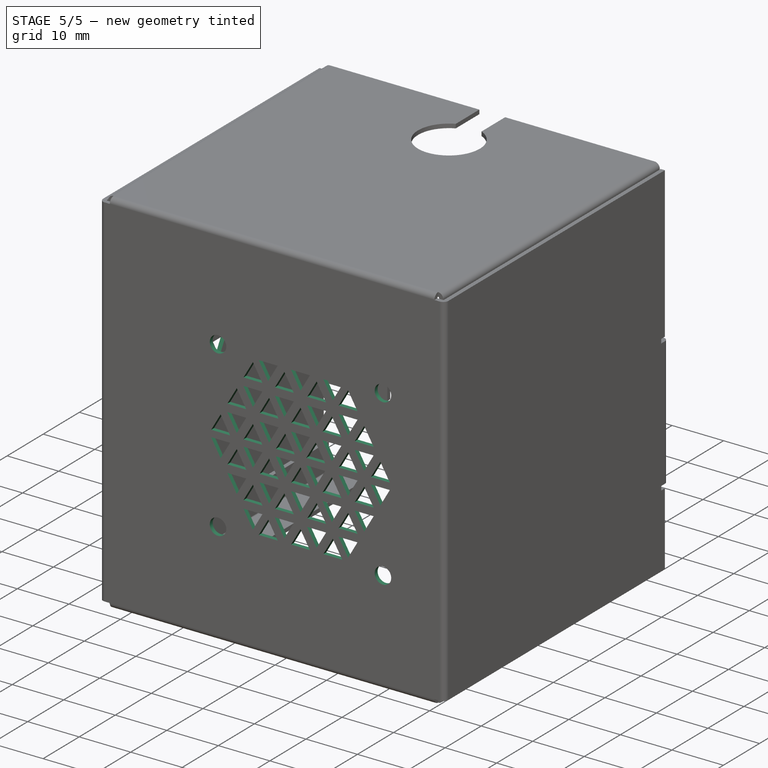
[diagram: stage 5 of 5 — iso view after this stage's code; geometry added in this stage tinted green]
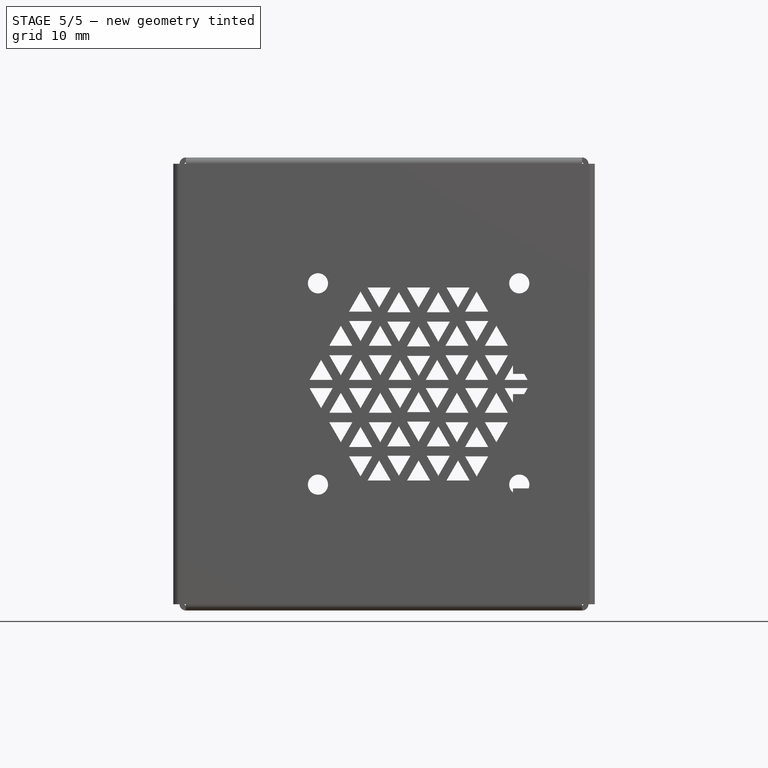
[diagram: stage 5 of 5 — front view after this stage's code; geometry added in this stage tinted green]
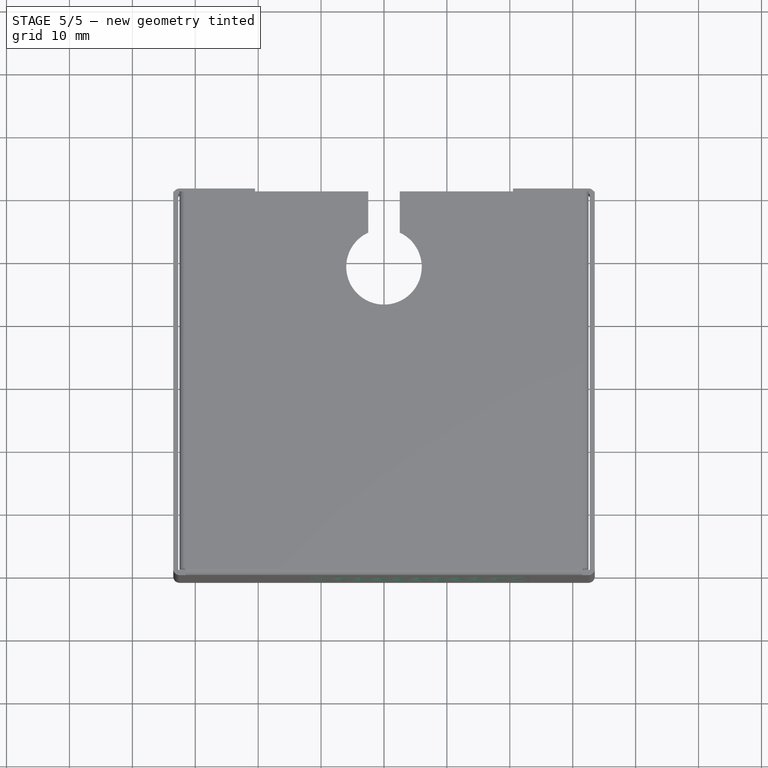
[diagram: stage 5 of 5 — top view after this stage's code; geometry added in this stage tinted green]
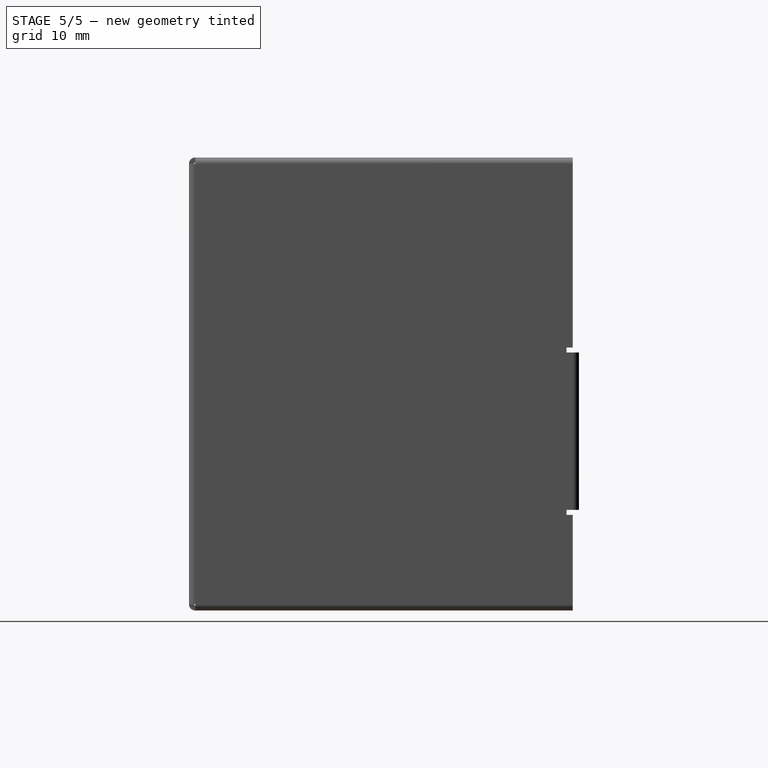
[diagram: stage 5 of 5 — right view after this stage's code; geometry added in this stage tinted green]
FEATURE [PartDesign::Line] DatumLine
  AttacherType = Attacher::AttachEngineLine
  Length = 20
  MapMode = 19
  Placement = pos=(-33.5,25.2,5) rot=(0.57735,-0.57735,-0.57735;2.0944rad)
  ResizeMode = 0
  Support = -> [Pocket004]
FEATURE [PartDesign::PolarPattern] PolarPattern
  Angle = 360
  Axis = -> DatumLine
  BaseFeature = -> Pocket004
  Occurrences = 6
  Originals = -> [Pocket004]
FEATURE [Sketcher::SketchObject] Sketch006
  ExternalGeometry = -> [PolarPattern]
  FullyConstrained = true
  MapMode = 5
  Placement = pos=(0,-0.8,2e-16) rot=(1,0,0;1.5708rad)
  Support = -> [PolarPattern]
  sketch-geometry (46):
    g0: LineSegment StartX=5.5 StartY=20 StartZ=0 EndX=5.5 EndY=-20 EndZ=0
    g1: LineSegment StartX=3.665 StartY=15.3349 StartZ=0 EndX=7.335 EndY=15.3349 EndZ=0
    g2: LineSegment StartX=3.665 StartY=15.3349 StartZ=0 EndX=5.5 EndY=12.1566 EndZ=0
    g3: LineSegment StartX=5.5 StartY=12.1566 StartZ=0 EndX=7.335 EndY=15.3349 EndZ=0
    g4: Circle CenterX=5.5 CenterY=0 CenterZ=0 NormalX=0 NormalY=0 NormalZ=1 AngleXU=0 Radius=20
    g5: LineSegment StartX=2.36596 StartY=14.5849 StartZ=0 EndX=0.530962 EndY=11.4066 EndZ=0
    g6: LineSegment StartX=0.530962 StartY=11.4066 StartZ=0 EndX=4.20096 EndY=11.4066 EndZ=0
    g7: LineSegment StartX=4.20096 StartY=11.4066 StartZ=0 EndX=2.36596 EndY=14.5849 EndZ=0
    g8: LineSegment StartX=5.5 StartY=9.15663 StartZ=0 EndX=3.665 EndY=5.97831 EndZ=0
    g9: LineSegment StartX=3.665 StartY=5.97831 StartZ=0 EndX=7.335 EndY=5.97831 EndZ=0
    g10: LineSegment StartX=7.335 StartY=5.97831 StartZ=0 EndX=5.5 EndY=9.15663 EndZ=0
    g11: LineSegment StartX=3.665 StartY=4.47831 StartZ=0 EndX=7.335 EndY=4.47831 EndZ=0
    g12: LineSegment StartX=7.335 StartY=4.47831 StartZ=0 EndX=5.5 EndY=1.3 EndZ=0
    g13: LineSegment StartX=5.5 StartY=1.3 StartZ=0 EndX=3.665 EndY=4.47831 EndZ=0
    g14: LineSegment StartX=0.530962 StartY=9.90663 StartZ=0 EndX=4.20096 EndY=9.90663 EndZ=0
    g15: LineSegment StartX=0.530962 StartY=9.90663 StartZ=0 EndX=2.36596 EndY=6.72831 EndZ=0
    g16: LineSegment StartX=2.36596 StartY=6.72831 StartZ=0 EndX=4.20096 EndY=9.90663 EndZ=0
    g17: LineSegment StartX=0.530962 StartY=11.4066 StartZ=0 EndX=0.530962 EndY=9.90663 EndZ=0
    g18: LineSegment StartX=3.665 StartY=5.97831 StartZ=0 EndX=3.665 EndY=4.47831 EndZ=0
    g19: LineSegment StartX=2.36596 StartY=6.72831 StartZ=0 EndX=3.665 EndY=5.97831 EndZ=0
    g20: LineSegment StartX=2.36596 StartY=14.5849 StartZ=0 EndX=3.665 EndY=15.3349 EndZ=0
    g21: LineSegment StartX=0.530962 StartY=9.90663 StartZ=0 EndX=5.5 EndY=1.3 EndZ=0
    g22: Circle CenterX=5.5 CenterY=0 CenterZ=0 NormalX=0 NormalY=0 NormalZ=1 AngleXU=0 Radius=0.005
    g23: LineSegment StartX=6.79904 StartY=9.90663 StartZ=0 EndX=10.469 EndY=9.90663 EndZ=0
    g24: LineSegment StartX=10.469 StartY=9.90663 StartZ=0 EndX=8.63404 EndY=6.72831 EndZ=0
    g25: LineSegment StartX=8.63404 StartY=6.72831 StartZ=0 EndX=6.79904 EndY=9.90663 EndZ=0
    g26: LineSegment StartX=6.79904 StartY=11.4066 StartZ=0 EndX=10.469 EndY=11.4066 EndZ=0
    g27: LineSegment StartX=10.469 StartY=11.4066 StartZ=0 EndX=8.63404 EndY=14.5849 EndZ=0
    g28: LineSegment StartX=8.63404 StartY=14.5849 StartZ=0 EndX=6.79904 EndY=11.4066 EndZ=0
    g29: LineSegment StartX=7.335 StartY=5.97831 StartZ=0 EndX=8.63404 EndY=6.72831 EndZ=0
    g30: LineSegment StartX=7.335 StartY=15.3349 StartZ=0 EndX=8.63404 EndY=14.5849 EndZ=0
    g31: LineSegment StartX=10.469 StartY=11.4066 StartZ=0 EndX=10.469 EndY=9.90663 EndZ=0
    g32: LineSegment StartX=-0.768076 StartY=12.1566 StartZ=0 EndX=1.06692 EndY=15.3349 EndZ=0
    g33: LineSegment StartX=1.06692 StartY=15.3349 StartZ=0 EndX=-2.60308 EndY=15.3349 EndZ=0
    g34: LineSegment StartX=-2.60308 StartY=15.3349 StartZ=0 EndX=-0.768076 EndY=12.1566 EndZ=0
    g35: LineSegment StartX=-0.768076 StartY=12.1566 StartZ=0 EndX=0.530962 EndY=11.4066 EndZ=0
    g36: LineSegment StartX=1.06692 StartY=15.3349 StartZ=0 EndX=2.36596 EndY=14.5849 EndZ=0
    g37: LineSegment StartX=9.93308 StartY=15.3349 StartZ=0 EndX=13.6031 EndY=15.3349 EndZ=0
    g38: LineSegment StartX=13.6031 StartY=15.3349 StartZ=0 EndX=11.7681 EndY=12.1566 EndZ=0
    g39: LineSegment StartX=11.7681 StartY=12.1566 StartZ=0 EndX=9.93308 EndY=15.3349 EndZ=0
    g40: LineSegment StartX=8.63404 StartY=14.5849 StartZ=0 EndX=9.93308 EndY=15.3349 EndZ=0
    g41: LineSegment StartX=10.469 StartY=11.4066 StartZ=0 EndX=11.7681 EndY=12.1566 EndZ=0
    g42: LineSegment StartX=-14.5 StartY=20 StartZ=0 EndX=25.5 EndY=20 EndZ=0
    g43: LineSegment StartX=25.5 StartY=20 StartZ=0 EndX=25.5 EndY=-20 EndZ=0
    g44: LineSegment StartX=25.5 StartY=-20 StartZ=0 EndX=-14.5 EndY=-20 EndZ=0
    g45: LineSegment StartX=-14.5 StartY=-20 StartZ=0 EndX=-14.5 EndY=20 EndZ=0
  constraints (125):
    c: Vertical(g0)
    c: Horizontal(g1)
    c: Coincident(g2,g1)
    c: PointOnObject(g2,g0)
    c: Coincident(g3,g2)
    c: Coincident(g3,g1)
    c: PointOnObject(g4,g0)
    c: Diameter(g4) = 40
    c: Equal(g3,g2)
    c: Equal(g2,g1)
    c: Coincident(g5,g6)
    c: Horizontal(g6)
    c: Coincident(g6,g7)
    c: Coincident(g7,g5)
    c: PointOnObject(g8,g0)
    c: Coincident(g8,g9)
    c: Horizontal(g9)
    c: Coincident(g9,g10)
    c: Coincident(g10,g8)
    c: Horizontal(g11)
    c: Coincident(g11,g12)
    c: PointOnObject(g12,g0)
    c: Coincident(g12,g13)
    c: Coincident(g13,g11)
    c: Equal(g5,g7)
    c: Equal(g7,g6)
    c: Equal(g6,g8)
    c: Equal(g8,g10)
    c: Equal(g10,g9)
    c: Equal(g9,g11)
    c: Equal(g11,g12)
    c: Equal(g12,g13)
    c: Equal(g13,g2)
    c: Horizontal(g14)
    c: Coincident(g15,g14)
    c: Coincident(g16,g15)
    c: Coincident(g16,g14)
    c: Equal(g14,g16)
    c: Equal(g16,g15)
    c: Equal(g15,g6)
    c: Coincident(g17,g5)
    c: Coincident(g17,g14)
    c: Vertical(g17)
    c: Coincident(g18,g8)
    c: Coincident(g18,g11)
    c: Equal(g18,g17)
    c: Coincident(g19,g15)
    c: Coincident(g19,g8)
    c: Equal(g19,g18)
    c: Coincident(g20,g5)
    c: Coincident(g20,g1)
    c: Equal(g20,g17)
    c: Coincident(g21,g14)
    c: Coincident(g21,g12)
    c: PointOnObject(g15,g21)
    c: Distance(g19) = 1.5
    c: DistanceY(g4,g12) = 1.3
    c: Coincident(g22,g4)
    c: Diameter(g22) = 0.01
    c: Horizontal(g23)
    c: Coincident(g23,g24)
    c: Coincident(g24,g25)
    c: Coincident(g25,g23)
    c: Coincident(g26,g27)
    c: Coincident(g27,g28)
    c: Coincident(g28,g26)
    c: Horizontal(g26)
    c: Equal(g28,g27)
    c: Equal(g27,g26)
    c: Equal(g26,g23)
    c: Equal(g23,g24)
    c: Equal(g24,g25)
    c: Equal(g25,g10)
    c: Coincident(g29,g9)
    c: Coincident(g29,g24)
    c: Coincident(g30,g1)
    c: Coincident(g30,g27)
    c: Coincident(g31,g26)
    c: Coincident(g31,g23)
    c: Vertical(g31)
    c: Equal(g30,g31)
    c: Equal(g31,g29)
    c: Equal(g29,g19)
    c: Coincident(g32,g33)
    c: Horizontal(g33)
    c: Coincident(g33,g34)
    c: Coincident(g34,g32)
    c: Equal(g33,g34)
    c: Equal(g34,g32)
    c: Equal(g32,g5)
    c: Coincident(g35,g32)
    c: Coincident(g35,g5)
    c: Coincident(g36,g32)
    c: Coincident(g36,g5)
    c: Equal(g36,g20)
    c: Parallel(g35,g19)
    c: Coincident(g37,g38)
    c: Coincident(g38,g39)
    c: Coincident(g39,g37)
    c: Equal(g37,g38)
    c: Equal(g38,g39)
    c: Equal(g39,g27)
    c: Horizontal(g37)
    c: Coincident(g40,g27)
    c: Coincident(g40,g37)
    c: Coincident(g41,g26)
    c: Coincident(g41,g38)
    c: Equal(g40,g20)
    c: Parallel(g41,g29)
    c: DistanceX(g1,g1) = 3.67
    c: Coincident(g42,g43)
    c: Coincident(g43,g44)
    c: Coincident(g44,g45)
    c: Coincident(g45,g42)
    c: Horizontal(g42)
    c: Horizontal(g44)
    c: Vertical(g43)
    c: Vertical(g45)
    c: PointOnObject(g0,g44)
    c: PointOnObject(g0,g42)
    c: Equal(g42,g43)
    c: DistanceY(g43,g43) = 40
    c: Symmetric(g42,g43,g22)
    c: DistanceX(g42,g-3) = 7
    c: PointOnObject(g22,g-1)
FEATURE [PartDesign::Pocket] Pocket005  label="hotend_fan_holes"
  BaseFeature = -> PolarPattern
  Length = 5
  Length2 = 100
  Profile = -> Sketch006
  Type = 0
FEATURE [PartDesign::Line] DatumLine001
  AttacherType = Attacher::AttachEngineLine
  Length = 20
  MapMode = 19
  Placement = pos=(5.5,-0.8,2e-16) rot=(1,0,0;1.5708rad)
  ResizeMode = 0
  Support = -> [Pocket005]
FEATURE [PartDesign::PolarPattern] PolarPattern001
  Angle = 360
  Axis = -> DatumLine001
  BaseFeature = -> Pocket005
  Occurrences = 6
  Originals = -> [Pocket005]
FEATURE [Sketcher::SketchObject] Sketch007
  ExternalGeometry = -> [PolarPattern001]
  FullyConstrained = true
  MapMode = 5
  Placement = pos=(0,-0.8,2e-16) rot=(1,0,0;1.5708rad)
  Support = -> [PolarPattern001]
  sketch-geometry (8):
    g0: LineSegment StartX=-10.4975 StartY=16.0043 StartZ=0 EndX=21.5025 EndY=16.0043 EndZ=0
    g1: LineSegment StartX=21.5025 StartY=16.0043 StartZ=0 EndX=21.5025 EndY=-15.9957 EndZ=0
    g2: LineSegment StartX=21.5025 StartY=-15.9957 StartZ=0 EndX=-10.4975 EndY=-15.9957 EndZ=0
    g3: LineSegment StartX=-10.4975 StartY=-15.9957 StartZ=0 EndX=-10.4975 EndY=16.0043 EndZ=0
    g4: Circle CenterX=-10.4975 CenterY=16.0043 CenterZ=0 NormalX=0 NormalY=0 NormalZ=1 AngleXU=0 Radius=1.6
    g5: Circle CenterX=21.5025 CenterY=16.0043 CenterZ=0 NormalX=0 NormalY=0 NormalZ=1 AngleXU=0 Radius=1.6
    g6: Circle CenterX=21.5025 CenterY=-15.9957 CenterZ=0 NormalX=0 NormalY=0 NormalZ=1 AngleXU=0 Radius=1.6
    g7: Circle CenterX=-10.4975 CenterY=-15.9957 CenterZ=0 NormalX=0 NormalY=0 NormalZ=1 AngleXU=0 Radius=1.6
  constraints (19):
    c: Coincident(g0,g1)
    c: Coincident(g1,g2)
    c: Coincident(g2,g3)
    c: Coincident(g3,g0)
    c: Horizontal(g0)
    c: Horizontal(g2)
    c: Vertical(g1)
    c: Vertical(g3)
    c: Symmetric(g0,g1,g-3)
    c: Equal(g0,g1)
    c: DistanceY(g1,g1) = 32
    c: Coincident(g4,g0)
    c: Coincident(g5,g0)
    c: Coincident(g6,g1)
    c: Coincident(g7,g2)
    c: Equal(g7,g4)
    c: Equal(g4,g5)
    c: Equal(g5,g6)
    c: Diameter(g5) = 3.2
FEATURE [PartDesign::Pocket] Pocket006
  BaseFeature = -> PolarPattern001
  Length = 5
  Length2 = 100
  Profile = -> Sketch007
  Type = 0
FEATURE [PartDesign::Body] Body
  Group = -> [Sketch,Pad,Bend,Bend001,Bend002,Bend003,Bend004,Bend005,Bend006,Bend007,Bend008,Bend009,Sketch001,Pocket,Sketch002,Pocket001,Sketch003,Pocket002,Sketch004,Pocket003,Sketch005,Pocket004,DatumLine,PolarPattern,Sketch006,Pocket005,DatumLine001,PolarPattern001,Sketch007,Pocket006]
  Origin = -> Origin
  Tip = -> Pocket006
FEATURE [Part::Feature] Unfold
  shape: bbox 211.3 x 0.8 x 191.1 mm, 396 faces (baked)
FEATURE [Sketcher::SketchObject] Unfold_Sketch
  FullyConstrained = false
  sketch-geometry (414):
    g0: LineSegment StartX=-1.6 StartY=-105.631 StartZ=0 EndX=-5 EndY=-105.631 EndZ=0
    g1: LineSegment StartX=-1.6 StartY=-105.631 StartZ=0 EndX=-1.6 EndY=-100.631 EndZ=0
    g2: ArcOfCircle CenterX=-8.7e-15 CenterY=-100.631 CenterZ=0 NormalX=0 NormalY=0 NormalZ=1 AngleXU=1.5708 Radius=1.6 StartAngle=4.71239 EndAngle=7.85398
    g3: LineSegment StartX=1.6 StartY=-100.631 StartZ=0 EndX=1.6 EndY=-105.631 EndZ=0
    g4: LineSegment StartX=13.4 StartY=-105.631 StartZ=0 EndX=1.6 EndY=-105.631 EndZ=0
    g5: LineSegment StartX=13.4 StartY=-105.631 StartZ=0 EndX=13.4 EndY=-100.631 EndZ=0
    g6: ArcOfCircle CenterX=15 CenterY=-100.631 CenterZ=0 NormalX=0 NormalY=0 NormalZ=1 AngleXU=1.5708 Radius=1.6 StartAngle=4.71239 EndAngle=7.85398
    g7: LineSegment StartX=16.6 StartY=-100.631 StartZ=0 EndX=16.6 EndY=-105.631 EndZ=0
    g8: LineSegment StartX=20 StartY=-105.631 StartZ=0 EndX=16.6 EndY=-105.631 EndZ=0
    g9: LineSegment StartX=20 StartY=-92.0655 StartZ=0 EndX=20 EndY=-105.631 EndZ=0
    g10: LineSegment StartX=20 StartY=-92.0655 StartZ=0 EndX=20.8 EndY=-92.0655 EndZ=0
    g11: LineSegment StartX=20.8 StartY=-92.0655 StartZ=0 EndX=20.8 EndY=-93.0655 EndZ=0
    g12: LineSegment StartX=35 StartY=-93.0655 StartZ=0 EndX=20.8 EndY=-93.0655 EndZ=0
    g13: LineSegment StartX=35 StartY=-31.5 StartZ=0 EndX=35 EndY=-93.0655 EndZ=0
    g14: LineSegment StartX=35 StartY=-31.5 StartZ=0 EndX=35.5655 EndY=-31.5 EndZ=0
    g15: LineSegment StartX=35.5655 StartY=-31.5 StartZ=0 EndX=35.5655 EndY=-37.0655 EndZ=0
    g16: LineSegment StartX=95.5655 StartY=-37.0655 StartZ=0 EndX=35.5655 EndY=-37.0655 EndZ=0
    g17: LineSegment StartX=95.5655 StartY=-25 StartZ=0 EndX=95.5655 EndY=-37.0655 EndZ=0
    g18: LineSegment StartX=55.5655 StartY=-25 StartZ=0 EndX=95.5655 EndY=-25 EndZ=0
    g19: ArcOfCircle CenterX=55.5655 CenterY=-20 CenterZ=0 NormalX=0 NormalY=0 NormalZ=1 AngleXU=1.5708 Radius=5 StartAngle=1.5708 EndAngle=3.14159
    g20: LineSegment StartX=50.5655 StartY=20 StartZ=0 EndX=50.5655 EndY=-20 EndZ=0
    g21: ArcOfCircle CenterX=55.5655 CenterY=20 CenterZ=0 NormalX=0 NormalY=0 NormalZ=1 AngleXU=1.5708 Radius=5 StartAngle=0 EndAngle=1.5708
    g22: LineSegment StartX=95.5655 StartY=25 StartZ=0 EndX=55.5655 EndY=25 EndZ=0
    g23: LineSegment StartX=95.5655 StartY=37.0655 StartZ=0 EndX=95.5655 EndY=25 EndZ=0
    g24: LineSegment StartX=35.5655 StartY=37.0655 StartZ=0 EndX=95.5655 EndY=37.0655 EndZ=0
    g25: LineSegment StartX=35.5655 StartY=31.5 StartZ=0 EndX=35.5655 EndY=37.0655 EndZ=0
    g26: LineSegment StartX=35.5655 StartY=31.5 StartZ=0 EndX=35 EndY=31.5 EndZ=0
    g27: LineSegment StartX=35 StartY=93.0655 StartZ=0 EndX=35 EndY=31.5 EndZ=0
    g28: LineSegment StartX=20.8 StartY=93.0655 StartZ=0 EndX=35 EndY=93.0655 EndZ=0
    g29: LineSegment StartX=20.8 StartY=93.0655 StartZ=0 EndX=20.8 EndY=92.0655 EndZ=0
    g30: LineSegment StartX=20.8 StartY=92.0655 StartZ=0 EndX=20 EndY=92.0655 EndZ=0
    g31: LineSegment StartX=20 StartY=92.0655 StartZ=0 EndX=20 EndY=105.631 EndZ=0
    g32: LineSegment StartX=16.6 StartY=105.631 StartZ=0 EndX=20 EndY=105.631 EndZ=0
    g33: LineSegment StartX=16.6 StartY=100.631 StartZ=0 EndX=16.6 EndY=105.631 EndZ=0
    g34: ArcOfCircle CenterX=15 CenterY=100.631 CenterZ=0 NormalX=0 NormalY=0 NormalZ=1 AngleXU=1.5708 Radius=1.6 StartAngle=1.5708 EndAngle=4.71239
    g35: LineSegment StartX=13.4 StartY=105.631 StartZ=0 EndX=13.4 EndY=100.631 EndZ=0
    g36: LineSegment StartX=1.6 StartY=105.631 StartZ=0 EndX=13.4 EndY=105.631 EndZ=0
    g37: LineSegment StartX=1.6 StartY=100.631 StartZ=0 EndX=1.6 EndY=105.631 EndZ=0
    g38: ArcOfCircle CenterX=7.2e-15 CenterY=100.631 CenterZ=0 NormalX=0 NormalY=0 NormalZ=1 AngleXU=1.5708 Radius=1.6 StartAngle=1.5708 EndAngle=4.71239
    g39: LineSegment StartX=-1.6 StartY=105.631 StartZ=0 EndX=-1.6 EndY=100.631 EndZ=0
    g40: LineSegment StartX=-5 StartY=105.631 StartZ=0 EndX=-1.6 EndY=105.631 EndZ=0
    g41: LineSegment StartX=-5 StartY=92.0655 StartZ=0 EndX=-5 EndY=105.631 EndZ=0
    g42: LineSegment StartX=-5 StartY=92.0655 StartZ=0 EndX=-5.8 EndY=92.0655 EndZ=0
    g43: LineSegment StartX=-5.8 StartY=92.0655 StartZ=0 EndX=-5.8 EndY=93.0655 EndZ=0
    g44: LineSegment StartX=-35 StartY=93.0655 StartZ=0 EndX=-5.8 EndY=93.0655 EndZ=0
    g45: LineSegment StartX=-35 StartY=31.5 StartZ=0 EndX=-35 EndY=93.0655 EndZ=0
    g46: LineSegment StartX=-35 StartY=31.5 StartZ=0 EndX=-35.5655 EndY=31.5 EndZ=0
    g47: LineSegment StartX=-35.5655 StartY=31.5 StartZ=0 EndX=-35.5655 EndY=37.0655 EndZ=0
    g48: LineSegment StartX=-95.5655 StartY=37.0655 StartZ=0 EndX=-35.5655 EndY=37.0655 EndZ=0
    g49: LineSegment StartX=-95.5655 StartY=2.5 StartZ=0 EndX=-95.5655 EndY=37.0655 EndZ=0
    g50: LineSegment StartX=-95.5655 StartY=2.5 StartZ=0 EndX=-89.0198 EndY=2.5 EndZ=0
    g51: ArcOfCircle CenterX=-83.5655 CenterY=0 CenterZ=0 NormalX=0 NormalY=0 NormalZ=1 AngleXU=1.5708 Radius=6 StartAngle=2.00057 EndAngle=7.42421
    g52: LineSegment StartX=-89.0198 StartY=-2.5 StartZ=0 EndX=-95.5655 EndY=-2.5 EndZ=0
    g53: LineSegment StartX=-95.5655 StartY=-37.0655 StartZ=0 EndX=-95.5655 EndY=-2.5 EndZ=0
    g54: LineSegment StartX=-35.5655 StartY=-37.0655 StartZ=0 EndX=-95.5655 EndY=-37.0655 EndZ=0
    g55: LineSegment StartX=-35.5655 StartY=-31.5 StartZ=0 EndX=-35.5655 EndY=-37.0655 EndZ=0
    g56: LineSegment StartX=-35.5655 StartY=-31.5 StartZ=0 EndX=-35 EndY=-31.5 EndZ=0
    g57: LineSegment StartX=-35 StartY=-93.0655 StartZ=0 EndX=-35 EndY=-31.5 EndZ=0
    g58: LineSegment StartX=-5.8 StartY=-93.0655 StartZ=0 EndX=-35 EndY=-93.0655 EndZ=0
    g59: LineSegment StartX=-5.8 StartY=-93.0655 StartZ=0 EndX=-5.8 EndY=-92.0655 EndZ=0
    g60: LineSegment StartX=-5.8 StartY=-92.0655 StartZ=0 EndX=-5 EndY=-92.0655 EndZ=0
    g61: LineSegment StartX=-5 StartY=-92.0655 StartZ=0 EndX=-5 EndY=-105.631 EndZ=0
    g62: Circle CenterX=13 CenterY=-38.0655 CenterZ=0 NormalX=0 NormalY=0 NormalZ=1 AngleXU=1.5708 Radius=1.75
    g63: Circle CenterX=-25 CenterY=-81.0655 CenterZ=0 NormalX=0 NormalY=0 NormalZ=1 AngleXU=1.5708 Radius=1.75
    g64: LineSegment StartX=-0.403421 StartY=-72.3162 StartZ=0 EndX=-0.403421 EndY=-68.6251 EndZ=0
    g65: LineSegment StartX=-3.6 StartY=-70.4706 StartZ=0 EndX=-0.403421 EndY=-72.3162 EndZ=0
    g66: LineSegment StartX=-0.403421 StartY=-68.6251 StartZ=0 EndX=-3.6 EndY=-70.4706 EndZ=0
    g67: LineSegment StartX=4.29316 StartY=-64.1814 StartZ=0 EndX=1.09658 EndY=-66.027 EndZ=0
    g68: LineSegment StartX=1.09658 StartY=-62.3359 StartZ=0 EndX=1.09658 EndY=-66.027 EndZ=0
    g69: LineSegment StartX=4.29316 StartY=-64.1814 StartZ=0 EndX=1.09658 EndY=-62.3359 EndZ=0
    g70: LineSegment StartX=-9.59658 StartY=-62.3359 StartZ=0 EndX=-9.59658 EndY=-66.027 EndZ=0
    g71: LineSegment StartX=-6.4 StartY=-64.1814 StartZ=0 EndX=-9.59658 EndY=-62.3359 EndZ=0
    g72: LineSegment StartX=-9.59658 StartY=-66.027 StartZ=0 EndX=-6.4 EndY=-64.1814 EndZ=0
    g73: LineSegment StartX=-11.8466 StartY=-48.8049 StartZ=0 EndX=-15.0432 EndY=-46.9594 EndZ=0
    g74: LineSegment StartX=-15.0432 StartY=-50.6505 StartZ=0 EndX=-11.8466 EndY=-48.8049 EndZ=0
    g75: LineSegment StartX=-15.0432 StartY=-46.9594 StartZ=0 EndX=-15.0432 EndY=-50.6505 EndZ=0
    g76: LineSegment StartX=-1.15342 StartY=-67.326 StartZ=0 EndX=-4.35 EndY=-69.1716 EndZ=0
    g77: LineSegment StartX=-4.35 StartY=-69.1716 StartZ=0 EndX=-4.35 EndY=-65.4805 EndZ=0
    g78: LineSegment StartX=-4.35 StartY=-65.4805 StartZ=0 EndX=-1.15342 EndY=-67.326 EndZ=0
    g79: LineSegment StartX=-19.7397 StartY=-48.8049 StartZ=0 EndX=-16.5432 EndY=-50.6505 EndZ=0
    g80: LineSegment StartX=-16.5432 StartY=-46.9594 StartZ=0 EndX=-19.7397 EndY=-48.8049 EndZ=0
    g81: LineSegment StartX=-16.5432 StartY=-50.6505 StartZ=0 EndX=-16.5432 EndY=-46.9594 EndZ=0
    g82: LineSegment StartX=-9.59658 StartY=-43.8148 StartZ=0 EndX=-9.59658 EndY=-47.5059 EndZ=0
    g83: LineSegment StartX=-6.4 StartY=-45.6604 StartZ=0 EndX=-9.59658 EndY=-43.8148 EndZ=0
    g84: LineSegment StartX=-9.59658 StartY=-47.5059 StartZ=0 EndX=-6.4 EndY=-45.6604 EndZ=0
    g85: LineSegment StartX=-11.0966 StartY=-66.027 StartZ=0 EndX=-14.2932 EndY=-64.1814 EndZ=0
    g86: LineSegment StartX=-14.2932 StartY=-64.1814 StartZ=0 EndX=-11.0966 EndY=-62.3359 EndZ=0
    g87: LineSegment StartX=-11.0966 StartY=-62.3359 StartZ=0 EndX=-11.0966 EndY=-66.027 EndZ=0
    g88: LineSegment StartX=-15.0432 StartY=-69.1716 StartZ=0 EndX=-11.8466 EndY=-67.326 EndZ=0
    g89: LineSegment StartX=-15.0432 StartY=-65.4805 StartZ=0 EndX=-15.0432 EndY=-69.1716 EndZ=0
    g90: LineSegment StartX=-11.8466 StartY=-67.326 StartZ=0 EndX=-15.0432 EndY=-65.4805 EndZ=0
    g91: LineSegment StartX=10.3897 StartY=-49.9308 StartZ=0 EndX=7.19316 EndY=-51.7763 EndZ=0
    g92: LineSegment StartX=10.3897 StartY=-53.6219 StartZ=0 EndX=10.3897 EndY=-49.9308 EndZ=0
    g93: LineSegment StartX=7.19316 StartY=-51.7763 StartZ=0 EndX=10.3897 EndY=-53.6219 EndZ=0
    g94: LineSegment StartX=-14.2932 StartY=-45.6604 StartZ=0 EndX=-11.0966 EndY=-43.8148 EndZ=0
    g95: LineSegment StartX=-11.0966 StartY=-47.5059 StartZ=0 EndX=-11.0966 EndY=-43.8148 EndZ=0
    g96: LineSegment StartX=-14.2932 StartY=-45.6604 StartZ=0 EndX=-11.0966 EndY=-47.5059 EndZ=0
    g97: LineSegment StartX=-5.65 StartY=-69.1716 StartZ=0 EndX=-8.84658 EndY=-67.326 EndZ=0
    g98: LineSegment StartX=-5.65 StartY=-65.4805 StartZ=0 EndX=-8.84658 EndY=-67.326 EndZ=0
    g99: LineSegment StartX=-5.65 StartY=-69.1716 StartZ=0 EndX=-5.65 EndY=-65.4805 EndZ=0
    g100: LineSegment StartX=-9.59658 StartY=-68.6251 StartZ=0 EndX=-9.59658 EndY=-72.3162 EndZ=0
    g101: LineSegment StartX=-6.4 StartY=-70.4706 StartZ=0 EndX=-9.59658 EndY=-68.6251 EndZ=0
    g102: LineSegment StartX=-9.59658 StartY=-72.3162 StartZ=0 EndX=-6.4 EndY=-70.4706 EndZ=0
    g103: LineSegment StartX=1.84658 StartY=-67.326 StartZ=0 EndX=5.04316 EndY=-69.1716 EndZ=0
    g104: LineSegment StartX=5.04316 StartY=-65.4805 StartZ=0 EndX=1.84658 EndY=-67.326 EndZ=0
    g105: LineSegment StartX=5.04316 StartY=-69.1716 StartZ=0 EndX=5.04316 EndY=-65.4805 EndZ=0
    g106: LineSegment StartX=-0.503421 StartY=-56.2199 StartZ=0 EndX=-0.503421 EndY=-59.911 EndZ=0
    g107: LineSegment StartX=-0.503421 StartY=-59.911 StartZ=0 EndX=-3.7 EndY=-58.0655 EndZ=0
    g108: LineSegment StartX=-3.7 StartY=-58.0655 StartZ=0 EndX=-0.503421 EndY=-56.2199 EndZ=0
    g109: LineSegment StartX=0.996579 StartY=-59.911 StartZ=0 EndX=4.19316 EndY=-58.0655 EndZ=0
    g110: LineSegment StartX=0.996579 StartY=-56.2199 StartZ=0 EndX=0.996579 EndY=-59.911 EndZ=0
    g111: LineSegment StartX=4.19316 StartY=-58.0655 StartZ=0 EndX=0.996579 EndY=-56.2199 EndZ=0
    g112: LineSegment StartX=-0.403421 StartY=-47.5059 StartZ=0 EndX=-0.403421 EndY=-43.8148 EndZ=0
    g113: LineSegment StartX=-3.6 StartY=-45.6604 StartZ=0 EndX=-0.403421 EndY=-47.5059 EndZ=0
    g114: LineSegment StartX=-0.403421 StartY=-43.8148 StartZ=0 EndX=-3.6 EndY=-45.6604 EndZ=0
    g115: LineSegment StartX=-1.15342 StartY=-61.0369 StartZ=0 EndX=-4.35 EndY=-62.8824 EndZ=0
    g116: LineSegment StartX=-4.35 StartY=-62.8824 StartZ=0 EndX=-4.35 EndY=-59.1913 EndZ=0
    g117: LineSegment StartX=-4.35 StartY=-59.1913 StartZ=0 EndX=-1.15342 EndY=-61.0369 EndZ=0
    g118: LineSegment StartX=-5.65 StartY=-75.4607 StartZ=0 EndX=-5.65 EndY=-71.7697 EndZ=0
    g119: LineSegment StartX=-8.84658 StartY=-73.6152 StartZ=0 EndX=-5.65 EndY=-75.4607 EndZ=0
    g120: LineSegment StartX=-5.65 StartY=-71.7697 StartZ=0 EndX=-8.84658 EndY=-73.6152 EndZ=0
    g121: LineSegment StartX=-10.9966 StartY=-56.2199 StartZ=0 EndX=-14.1932 EndY=-58.0655 EndZ=0
    g122: LineSegment StartX=-10.9966 StartY=-59.911 StartZ=0 EndX=-10.9966 EndY=-56.2199 EndZ=0
    g123: LineSegment StartX=-14.1932 StartY=-58.0655 StartZ=0 EndX=-10.9966 EndY=-59.911 EndZ=0
    g124: LineSegment StartX=-5.65 StartY=-62.8824 StartZ=0 EndX=-8.84658 EndY=-61.0369 EndZ=0
    g125: LineSegment StartX=-8.84658 StartY=-61.0369 StartZ=0 EndX=-5.65 EndY=-59.1913 EndZ=0
    g126: LineSegment StartX=-5.65 StartY=-59.1913 StartZ=0 EndX=-5.65 EndY=-62.8824 EndZ=0
    g127: LineSegment StartX=-20.3897 StartY=-53.6219 StartZ=0 EndX=-20.3897 EndY=-49.9308 EndZ=0
    g128: LineSegment StartX=-20.3897 StartY=-49.9308 StartZ=0 EndX=-17.1932 EndY=-51.7763 EndZ=0
    g129: LineSegment StartX=-17.1932 StartY=-51.7763 StartZ=0 EndX=-20.3897 EndY=-53.6219 EndZ=0
    g130: LineSegment StartX=-11.0966 StartY=-72.3162 StartZ=0 EndX=-14.2932 EndY=-70.4706 EndZ=0
    g131: LineSegment StartX=-11.0966 StartY=-68.6251 StartZ=0 EndX=-14.2932 EndY=-70.4706 EndZ=0
    g132: LineSegment StartX=-11.0966 StartY=-72.3162 StartZ=0 EndX=-11.0966 EndY=-68.6251 EndZ=0
    g133: LineSegment StartX=4.29316 StartY=-70.4706 StartZ=0 EndX=1.09658 EndY=-72.3162 EndZ=0
    g134: LineSegment StartX=1.09658 StartY=-68.6251 StartZ=0 EndX=1.09658 EndY=-72.3162 EndZ=0
    g135: LineSegment StartX=4.29316 StartY=-70.4706 StartZ=0 EndX=1.09658 EndY=-68.6251 EndZ=0
    g136: LineSegment StartX=9.73974 StartY=-67.326 StartZ=0 EndX=6.54316 EndY=-65.4805 EndZ=0
    g137: LineSegment StartX=6.54316 StartY=-69.1716 StartZ=0 EndX=9.73974 EndY=-67.326 EndZ=0
    g138: LineSegment StartX=6.54316 StartY=-65.4805 StartZ=0 EndX=6.54316 EndY=-69.1716 EndZ=0
    g139: LineSegment StartX=-14.2932 StartY=-51.9495 StartZ=0 EndX=-11.0966 EndY=-50.104 EndZ=0
    g140: LineSegment StartX=-11.0966 StartY=-53.7951 StartZ=0 EndX=-11.0966 EndY=-50.104 EndZ=0
    g141: LineSegment StartX=-14.2932 StartY=-51.9495 StartZ=0 EndX=-11.0966 EndY=-53.7951 EndZ=0
    g142: LineSegment StartX=-6.4 StartY=-51.9495 StartZ=0 EndX=-9.59658 EndY=-50.104 EndZ=0
    g143: LineSegment StartX=-9.59658 StartY=-53.7951 StartZ=0 EndX=-6.4 EndY=-51.9495 EndZ=0
    g144: LineSegment StartX=-9.59658 StartY=-50.104 StartZ=0 EndX=-9.59658 EndY=-53.7951 EndZ=0
    g145: LineSegment StartX=-8.84658 StartY=-55.0941 StartZ=0 EndX=-5.65 EndY=-53.2486 EndZ=0
    g146: LineSegment StartX=-5.65 StartY=-53.2486 StartZ=0 EndX=-5.65 EndY=-56.9397 EndZ=0
    g147: LineSegment StartX=-5.65 StartY=-56.9397 StartZ=0 EndX=-8.84658 EndY=-55.0941 EndZ=0
    g148: LineSegment StartX=-8.84658 StartY=-42.5158 StartZ=0 EndX=-5.65 EndY=-40.6702 EndZ=0
    g149: LineSegment StartX=-5.65 StartY=-40.6702 StartZ=0 EndX=-5.65 EndY=-44.3613 EndZ=0
    g150: LineSegment StartX=-5.65 StartY=-44.3613 StartZ=0 EndX=-8.84658 EndY=-42.5158 EndZ=0
    g151: LineSegment StartX=1.09658 StartY=-50.104 StartZ=0 EndX=4.29316 EndY=-51.9495 EndZ=0
    g152: LineSegment StartX=4.29316 StartY=-51.9495 StartZ=0 EndX=1.09658 EndY=-53.7951 EndZ=0
    g153: LineSegment StartX=1.09658 StartY=-53.7951 StartZ=0 EndX=1.09658 EndY=-50.104 EndZ=0
    g154: LineSegment StartX=-3.6 StartY=-64.1814 StartZ=0 EndX=-0.403421 EndY=-66.027 EndZ=0
    g155: LineSegment StartX=-0.403421 StartY=-62.3359 StartZ=0 EndX=-3.6 EndY=-64.1814 EndZ=0
    g156: LineSegment StartX=-0.403421 StartY=-66.027 StartZ=0 EndX=-0.403421 EndY=-62.3359 EndZ=0
    g157: LineSegment StartX=-4.35 StartY=-53.2486 StartZ=0 EndX=-1.15342 EndY=-55.0941 EndZ=0
    g158: LineSegment StartX=-1.15342 StartY=-55.0941 StartZ=0 EndX=-4.35 EndY=-56.9397 EndZ=0
    g159: LineSegment StartX=-4.35 StartY=-56.9397 StartZ=0 EndX=-4.35 EndY=-53.2486 EndZ=0
    g160: LineSegment StartX=-8.84658 StartY=-48.8049 StartZ=0 EndX=-5.65 EndY=-46.9594 EndZ=0
    g161: LineSegment StartX=-5.65 StartY=-46.9594 StartZ=0 EndX=-5.65 EndY=-50.6505 EndZ=0
    g162: LineSegment StartX=-5.65 StartY=-50.6505 StartZ=0 EndX=-8.84658 EndY=-48.8049 EndZ=0
    g163: LineSegment StartX=10.3897 StartY=-56.2199 StartZ=0 EndX=10.3897 EndY=-59.911 EndZ=0
    g164: LineSegment StartX=7.19316 StartY=-58.0655 StartZ=0 EndX=10.3897 EndY=-59.911 EndZ=0
    g165: LineSegment StartX=10.3897 StartY=-56.2199 StartZ=0 EndX=7.19316 EndY=-58.0655 EndZ=0
    g166: LineSegment StartX=-4.35 StartY=-40.6702 StartZ=0 EndX=-4.35 EndY=-44.3613 EndZ=0
    g167: LineSegment StartX=-1.15342 StartY=-42.5158 StartZ=0 EndX=-4.35 EndY=-40.6702 EndZ=0
    g168: LineSegment StartX=-4.35 StartY=-44.3613 StartZ=0 EndX=-1.15342 EndY=-42.5158 EndZ=0
    g169: LineSegment StartX=6.44316 StartY=-56.7664 StartZ=0 EndX=9.63974 EndY=-54.9209 EndZ=0
    g170: LineSegment StartX=6.44316 StartY=-53.0754 StartZ=0 EndX=6.44316 EndY=-56.7664 EndZ=0
    g171: LineSegment StartX=9.63974 StartY=-54.9209 StartZ=0 EndX=6.44316 EndY=-53.0754 EndZ=0
    g172: LineSegment StartX=1.09658 StartY=-43.8148 StartZ=0 EndX=4.29316 EndY=-45.6604 EndZ=0
    g173: LineSegment StartX=1.09658 StartY=-47.5059 StartZ=0 EndX=4.29316 EndY=-45.6604 EndZ=0
    g174: LineSegment StartX=1.09658 StartY=-43.8148 StartZ=0 EndX=1.09658 EndY=-47.5059 EndZ=0
    g175: LineSegment StartX=5.04316 StartY=-46.9594 StartZ=0 EndX=1.84658 EndY=-48.8049 EndZ=0
    g176: LineSegment StartX=5.04316 StartY=-50.6505 StartZ=0 EndX=5.04316 EndY=-46.9594 EndZ=0
    g177: LineSegment StartX=1.84658 StartY=-48.8049 StartZ=0 EndX=5.04316 EndY=-50.6505 EndZ=0
    g178: LineSegment StartX=9.63974 StartY=-61.2101 StartZ=0 EndX=6.44316 EndY=-59.3645 EndZ=0
    g179: LineSegment StartX=6.44316 StartY=-63.0556 StartZ=0 EndX=9.63974 EndY=-61.2101 EndZ=0
    g180: LineSegment StartX=6.44316 StartY=-59.3645 StartZ=0 EndX=6.44316 EndY=-63.0556 EndZ=0
    g181: LineSegment StartX=6.54316 StartY=-46.9594 StartZ=0 EndX=9.73974 EndY=-48.8049 EndZ=0
    g182: LineSegment StartX=9.73974 StartY=-48.8049 StartZ=0 EndX=6.54316 EndY=-50.6505 EndZ=0
    g183: LineSegment StartX=6.54316 StartY=-50.6505 StartZ=0 EndX=6.54316 EndY=-46.9594 EndZ=0
    g184: LineSegment StartX=-4.35 StartY=-46.9594 StartZ=0 EndX=-1.15342 EndY=-48.8049 EndZ=0
    g185: LineSegment StartX=-4.35 StartY=-50.6505 StartZ=0 EndX=-1.15342 EndY=-48.8049 EndZ=0
    g186: LineSegment StartX=-4.35 StartY=-46.9594 StartZ=0 EndX=-4.35 EndY=-50.6505 EndZ=0
    g187: LineSegment StartX=-0.403421 StartY=-53.7951 StartZ=0 EndX=-0.403421 EndY=-50.104 EndZ=0
    g188: LineSegment StartX=-3.6 StartY=-51.9495 StartZ=0 EndX=-0.403421 EndY=-53.7951 EndZ=0
    g189: LineSegment StartX=-0.403421 StartY=-50.104 StartZ=0 EndX=-3.6 EndY=-51.9495 EndZ=0
    g190: LineSegment StartX=4.94316 StartY=-53.0754 StartZ=0 EndX=4.94316 EndY=-56.7664 EndZ=0
    g191: LineSegment StartX=1.74658 StartY=-54.9209 StartZ=0 EndX=4.94316 EndY=-56.7664 EndZ=0
    g192: LineSegment StartX=4.94316 StartY=-53.0754 StartZ=0 EndX=1.74658 EndY=-54.9209 EndZ=0
    g193: LineSegment StartX=-9.49658 StartY=-59.911 StartZ=0 EndX=-9.49658 EndY=-56.2199 EndZ=0
    g194: LineSegment StartX=-9.49658 StartY=-56.2199 StartZ=0 EndX=-6.3 EndY=-58.0655 EndZ=0
    g195: LineSegment StartX=-6.3 StartY=-58.0655 StartZ=0 EndX=-9.49658 EndY=-59.911 EndZ=0
    g196: LineSegment StartX=-16.4432 StartY=-59.3645 StartZ=0 EndX=-19.6397 EndY=-61.2101 EndZ=0
    g197: LineSegment StartX=-16.4432 StartY=-63.0556 StartZ=0 EndX=-16.4432 EndY=-59.3645 EndZ=0
    g198: LineSegment StartX=-19.6397 StartY=-61.2101 StartZ=0 EndX=-16.4432 EndY=-63.0556 EndZ=0
    g199: LineSegment StartX=-14.9432 StartY=-56.7664 StartZ=0 EndX=-14.9432 EndY=-53.0754 EndZ=0
    g200: LineSegment StartX=-14.9432 StartY=-53.0754 StartZ=0 EndX=-11.7466 EndY=-54.9209 EndZ=0
    g201: LineSegment StartX=-11.7466 StartY=-54.9209 StartZ=0 EndX=-14.9432 EndY=-56.7664 EndZ=0
    g202: LineSegment StartX=-14.9432 StartY=-63.0556 StartZ=0 EndX=-14.9432 EndY=-59.3645 EndZ=0
    g203: LineSegment StartX=-11.7466 StartY=-61.2101 StartZ=0 EndX=-14.9432 EndY=-59.3645 EndZ=0
    g204: LineSegment StartX=-14.9432 StartY=-63.0556 StartZ=0 EndX=-11.7466 EndY=-61.2101 EndZ=0
    g205: LineSegment StartX=4.94316 StartY=-59.3645 StartZ=0 EndX=4.94316 EndY=-63.0556 EndZ=0
    g206: LineSegment StartX=4.94316 StartY=-63.0556 StartZ=0 EndX=1.74658 EndY=-61.2101 EndZ=0
    g207: LineSegment StartX=1.74658 StartY=-61.2101 StartZ=0 EndX=4.94316 EndY=-59.3645 EndZ=0
    g208: LineSegment StartX=-20.3897 StartY=-59.911 StartZ=0 EndX=-20.3897 EndY=-56.2199 EndZ=0
    g209: LineSegment StartX=-17.1932 StartY=-58.0655 StartZ=0 EndX=-20.3897 EndY=-56.2199 EndZ=0
    g210: LineSegment StartX=-20.3897 StartY=-59.911 StartZ=0 EndX=-17.1932 EndY=-58.0655 EndZ=0
    g211: LineSegment StartX=-19.6397 StartY=-54.9209 StartZ=0 EndX=-16.4432 EndY=-56.7664 EndZ=0
    g212: LineSegment StartX=-16.4432 StartY=-53.0754 StartZ=0 EndX=-19.6397 EndY=-54.9209 EndZ=0
    g213: LineSegment StartX=-16.4432 StartY=-56.7664 StartZ=0 EndX=-16.4432 EndY=-53.0754 EndZ=0
    g214: LineSegment StartX=-20.3897 StartY=-66.2002 StartZ=0 EndX=-17.1932 EndY=-64.3547 EndZ=0
    g215: LineSegment StartX=-20.3897 StartY=-62.5091 StartZ=0 EndX=-20.3897 EndY=-66.2002 EndZ=0
    g216: LineSegment StartX=-17.1932 StartY=-64.3547 StartZ=0 EndX=-20.3897 EndY=-62.5091 EndZ=0
    g217: LineSegment StartX=-1.15342 StartY=-73.6152 StartZ=0 EndX=-4.35 EndY=-75.4607 EndZ=0
    g218: LineSegment StartX=-4.35 StartY=-75.4607 StartZ=0 EndX=-4.35 EndY=-71.7697 EndZ=0
    g219: LineSegment StartX=-4.35 StartY=-71.7697 StartZ=0 EndX=-1.15342 EndY=-73.6152 EndZ=0
    g220: LineSegment StartX=10.3897 StartY=-62.5091 StartZ=0 EndX=10.3897 EndY=-66.2002 EndZ=0
    g221: LineSegment StartX=10.3897 StartY=-66.2002 StartZ=0 EndX=7.19316 EndY=-64.3547 EndZ=0
    g222: LineSegment StartX=7.19316 StartY=-64.3547 StartZ=0 EndX=10.3897 EndY=-62.5091 EndZ=0
    g223: LineSegment StartX=-16.5432 StartY=-69.1716 StartZ=0 EndX=-19.7397 EndY=-67.326 EndZ=0
    g224: LineSegment StartX=-19.7397 StartY=-67.326 StartZ=0 EndX=-16.5432 EndY=-65.4805 EndZ=0
    g225: LineSegment StartX=-16.5432 StartY=-65.4805 StartZ=0 EndX=-16.5432 EndY=-69.1716 EndZ=0
    g226: LineSegment StartX=-3.82831 StartY=20.997 StartZ=0 EndX=-0.65 EndY=22.832 EndZ=0
    g227: LineSegment StartX=-0.65 StartY=22.832 StartZ=0 EndX=-0.65 EndY=19.162 EndZ=0
    g228: LineSegment StartX=-0.65 StartY=19.162 StartZ=0 EndX=-3.82831 EndY=20.997 EndZ=0
    g229: LineSegment StartX=-6.82831 StartY=14.7289 StartZ=0 EndX=-10.0066 EndY=16.5639 EndZ=0
    g230: LineSegment StartX=-10.0066 StartY=12.8939 StartZ=0 EndX=-6.82831 EndY=14.7289 EndZ=0
    g231: LineSegment StartX=-10.0066 StartY=16.5639 StartZ=0 EndX=-10.0066 EndY=12.8939 EndZ=0
    g232: LineSegment StartX=4.57831 StartY=16.0279 StartZ=0 EndX=4.57831 EndY=19.6979 EndZ=0
    g233: LineSegment StartX=1.4 StartY=17.8629 StartZ=0 EndX=4.57831 EndY=16.0279 EndZ=0
    g234: LineSegment StartX=4.57831 StartY=19.6979 StartZ=0 EndX=1.4 EndY=17.8629 EndZ=0
    g235: LineSegment StartX=3.82831 StartY=-9.99699 StartZ=0 EndX=0.65 EndY=-11.832 EndZ=0
    g236: LineSegment StartX=0.65 StartY=-11.832 StartZ=0 EndX=0.65 EndY=-8.16199 EndZ=0
    g237: LineSegment StartX=0.65 StartY=-8.16199 StartZ=0 EndX=3.82831 EndY=-9.99699 EndZ=0
    g238: LineSegment StartX=-1.4 StartY=11.5949 StartZ=0 EndX=-4.57831 EndY=13.4299 EndZ=0
    g239: LineSegment StartX=-4.57831 StartY=9.75987 StartZ=0 EndX=-1.4 EndY=11.5949 EndZ=0
    g240: LineSegment StartX=-4.57831 StartY=13.4299 StartZ=0 EndX=-4.57831 EndY=9.75987 EndZ=0
    g241: LineSegment StartX=9.25663 StartY=-6.86295 StartZ=0 EndX=6.07831 EndY=-8.69795 EndZ=0
    g242: LineSegment StartX=6.07831 StartY=-5.02795 StartZ=0 EndX=6.07831 EndY=-8.69795 EndZ=0
    g243: LineSegment StartX=9.25663 StartY=-6.86295 StartZ=0 EndX=6.07831 EndY=-5.02795 EndZ=0
    g244: LineSegment StartX=10.0066 StartY=16.5639 StartZ=0 EndX=6.82831 EndY=14.7289 EndZ=0
    g245: LineSegment StartX=10.0066 StartY=12.8939 StartZ=0 EndX=10.0066 EndY=16.5639 EndZ=0
    g246: LineSegment StartX=6.82831 StartY=14.7289 StartZ=0 EndX=10.0066 EndY=12.8939 EndZ=0
    g247: LineSegment StartX=11.5066 StartY=16.5639 StartZ=0 EndX=14.6849 EndY=14.7289 EndZ=0
    g248: LineSegment StartX=14.6849 StartY=14.7289 StartZ=0 EndX=11.5066 EndY=12.8939 EndZ=0
    g249: LineSegment StartX=11.5066 StartY=12.8939 StartZ=0 EndX=11.5066 EndY=16.5639 EndZ=0
    g250: LineSegment StartX=4.57831 StartY=9.75987 StartZ=0 EndX=4.57831 EndY=13.4299 EndZ=0
    g251: LineSegment StartX=1.4 StartY=11.5949 StartZ=0 EndX=4.57831 EndY=9.75987 EndZ=0
    g252: LineSegment StartX=4.57831 StartY=13.4299 StartZ=0 EndX=1.4 EndY=11.5949 EndZ=0
    g253: LineSegment StartX=6.07831 StartY=13.4299 StartZ=0 EndX=9.25663 EndY=11.5949 EndZ=0
    g254: LineSegment StartX=9.25663 StartY=11.5949 StartZ=0 EndX=6.07831 EndY=9.75987 EndZ=0
    g255: LineSegment StartX=6.07831 StartY=9.75987 StartZ=0 EndX=6.07831 EndY=13.4299 EndZ=0
    g256: LineSegment StartX=9.90663 StartY=10.469 StartZ=0 EndX=9.90663 EndY=6.79904 EndZ=0
    g257: LineSegment StartX=6.72831 StartY=8.63404 StartZ=0 EndX=9.90663 EndY=6.79904 EndZ=0
    g258: LineSegment StartX=9.90663 StartY=10.469 StartZ=0 EndX=6.72831 EndY=8.63404 EndZ=0
    g259: LineSegment StartX=-11.5066 StartY=-5.56391 StartZ=0 EndX=-14.6849 EndY=-3.72891 EndZ=0
    g260: LineSegment StartX=-14.6849 StartY=-3.72891 StartZ=0 EndX=-11.5066 EndY=-1.89391 EndZ=0
    g261: LineSegment StartX=-11.5066 StartY=-1.89391 StartZ=0 EndX=-11.5066 EndY=-5.56391 EndZ=0
    g262: LineSegment StartX=-9.25663 StartY=17.8629 StartZ=0 EndX=-6.07831 EndY=19.6979 EndZ=0
    g263: LineSegment StartX=-6.07831 StartY=16.0279 StartZ=0 EndX=-6.07831 EndY=19.6979 EndZ=0
    g264: LineSegment StartX=-9.25663 StartY=17.8629 StartZ=0 EndX=-6.07831 EndY=16.0279 EndZ=0
    g265: LineSegment StartX=-4.57831 StartY=19.6979 StartZ=0 EndX=-4.57831 EndY=16.0279 EndZ=0
    g266: LineSegment StartX=-1.4 StartY=17.8629 StartZ=0 EndX=-4.57831 EndY=19.6979 EndZ=0
    g267: LineSegment StartX=-4.57831 StartY=16.0279 StartZ=0 EndX=-1.4 EndY=17.8629 EndZ=0
    g268: LineSegment StartX=6.82831 StartY=-3.72891 StartZ=0 EndX=10.0066 EndY=-5.56391 EndZ=0
    g269: LineSegment StartX=10.0066 StartY=-1.89391 StartZ=0 EndX=6.82831 EndY=-3.72891 EndZ=0
    g270: LineSegment StartX=10.0066 StartY=-5.56391 StartZ=0 EndX=10.0066 EndY=-1.89391 EndZ=0
    g271: LineSegment StartX=1.4 StartY=-0.594871 StartZ=0 EndX=4.57831 EndY=-2.42987 EndZ=0
    g272: LineSegment StartX=4.57831 StartY=1.24013 StartZ=0 EndX=1.4 EndY=-0.594871 EndZ=0
    g273: LineSegment StartX=4.57831 StartY=-2.42987 StartZ=0 EndX=4.57831 EndY=1.24013 EndZ=0
    g274: LineSegment StartX=-9.25663 StartY=11.5949 StartZ=0 EndX=-6.07831 EndY=13.4299 EndZ=0
    g275: LineSegment StartX=-6.07831 StartY=9.75987 StartZ=0 EndX=-6.07831 EndY=13.4299 EndZ=0
    g276: LineSegment StartX=-9.25663 StartY=11.5949 StartZ=0 EndX=-6.07831 EndY=9.75987 EndZ=0
    g277: LineSegment StartX=-6.07831 StartY=-2.42987 StartZ=0 EndX=-9.25663 EndY=-0.594871 EndZ=0
    g278: LineSegment StartX=-9.25663 StartY=-0.594871 StartZ=0 EndX=-6.07831 EndY=1.24013 EndZ=0
    g279: LineSegment StartX=-6.07831 StartY=1.24013 StartZ=0 EndX=-6.07831 EndY=-2.42987 EndZ=0
    g280: LineSegment StartX=-4.57831 StartY=1.24013 StartZ=0 EndX=-4.57831 EndY=-2.42987 EndZ=0
    g281: LineSegment StartX=-1.4 StartY=-0.594871 StartZ=0 EndX=-4.57831 EndY=1.24013 EndZ=0
    g282: LineSegment StartX=-4.57831 StartY=-2.42987 StartZ=0 EndX=-1.4 EndY=-0.594871 EndZ=0
    g283: LineSegment StartX=5.97831 StartY=3.665 StartZ=0 EndX=9.15663 EndY=5.5 EndZ=0
    g284: LineSegment StartX=5.97831 StartY=7.335 StartZ=0 EndX=5.97831 EndY=3.665 EndZ=0
    g285: LineSegment StartX=9.15663 StartY=5.5 StartZ=0 EndX=5.97831 EndY=7.335 EndZ=0
    g286: LineSegment StartX=9.90663 StartY=4.20096 StartZ=0 EndX=9.90663 EndY=0.530962 EndZ=0
    g287: LineSegment StartX=9.90663 StartY=0.530962 StartZ=0 EndX=6.72831 EndY=2.36596 EndZ=0
    g288: LineSegment StartX=6.72831 StartY=2.36596 StartZ=0 EndX=9.90663 EndY=4.20096 EndZ=0
    g289: LineSegment StartX=-0.65 StartY=-5.56391 StartZ=0 EndX=-3.82831 EndY=-3.72891 EndZ=0
    g290: LineSegment StartX=-0.65 StartY=-1.89391 StartZ=0 EndX=-3.82831 EndY=-3.72891 EndZ=0
    g291: LineSegment StartX=-0.65 StartY=-5.56391 StartZ=0 EndX=-0.65 EndY=-1.89391 EndZ=0
    g292: LineSegment StartX=15.3349 StartY=1.06692 StartZ=0 EndX=15.3349 EndY=-2.60308 EndZ=0
    g293: LineSegment StartX=15.3349 StartY=-2.60308 StartZ=0 EndX=12.1566 EndY=-0.768076 EndZ=0
    g294: LineSegment StartX=12.1566 StartY=-0.768076 StartZ=0 EndX=15.3349 EndY=1.06692 EndZ=0
    g295: LineSegment StartX=0.65 StartY=16.5639 StartZ=0 EndX=3.82831 EndY=14.7289 EndZ=0
    g296: LineSegment StartX=0.65 StartY=12.8939 StartZ=0 EndX=3.82831 EndY=14.7289 EndZ=0
    g297: LineSegment StartX=0.65 StartY=16.5639 StartZ=0 EndX=0.65 EndY=12.8939 EndZ=0
    g298: LineSegment StartX=14.6849 StartY=-3.72891 StartZ=0 EndX=11.5066 EndY=-1.89391 EndZ=0
    g299: LineSegment StartX=11.5066 StartY=-5.56391 StartZ=0 EndX=14.6849 EndY=-3.72891 EndZ=0
    g300: LineSegment StartX=11.5066 StartY=-1.89391 StartZ=0 EndX=11.5066 EndY=-5.56391 EndZ=0
    g301: LineSegment StartX=-4.57831 StartY=-5.02795 StartZ=0 EndX=-4.57831 EndY=-8.69795 EndZ=0
    g302: LineSegment StartX=-1.4 StartY=-6.86295 StartZ=0 EndX=-4.57831 EndY=-5.02795 EndZ=0
    g303: LineSegment StartX=-4.57831 StartY=-8.69795 StartZ=0 EndX=-1.4 EndY=-6.86295 EndZ=0
    g304: LineSegment StartX=-15.3349 StartY=9.93308 StartZ=0 EndX=-15.3349 EndY=13.6031 EndZ=0
    g305: LineSegment StartX=-15.3349 StartY=13.6031 StartZ=0 EndX=-12.1566 EndY=11.7681 EndZ=0
    g306: LineSegment StartX=-12.1566 StartY=11.7681 StartZ=0 EndX=-15.3349 EndY=9.93308 EndZ=0
    g307: LineSegment StartX=9.25663 StartY=-0.594871 StartZ=0 EndX=6.07831 EndY=-2.42987 EndZ=0
    g308: LineSegment StartX=6.07831 StartY=1.24013 StartZ=0 EndX=6.07831 EndY=-2.42987 EndZ=0
    g309: LineSegment StartX=9.25663 StartY=-0.594871 StartZ=0 EndX=6.07831 EndY=1.24013 EndZ=0
    g310: LineSegment StartX=11.4066 StartY=6.79904 StartZ=0 EndX=14.5849 EndY=8.63404 EndZ=0
    g311: LineSegment StartX=11.4066 StartY=10.469 StartZ=0 EndX=11.4066 EndY=6.79904 EndZ=0
    g312: LineSegment StartX=14.5849 StartY=8.63404 StartZ=0 EndX=11.4066 EndY=10.469 EndZ=0
    g313: LineSegment StartX=3.82831 StartY=-3.72891 StartZ=0 EndX=0.65 EndY=-5.56391 EndZ=0
    g314: LineSegment StartX=0.65 StartY=-5.56391 StartZ=0 EndX=0.65 EndY=-1.89391 EndZ=0
    g315: LineSegment StartX=0.65 StartY=-1.89391 StartZ=0 EndX=3.82831 EndY=-3.72891 EndZ=0
    g316: LineSegment StartX=-6.07831 StartY=-8.69795 StartZ=0 EndX=-9.25663 EndY=-6.86295 EndZ=0
    g317: LineSegment StartX=-6.07831 StartY=-5.02795 StartZ=0 EndX=-9.25663 EndY=-6.86295 EndZ=0
    g318: LineSegment StartX=-6.07831 StartY=-8.69795 StartZ=0 EndX=-6.07831 EndY=-5.02795 EndZ=0
    g319: LineSegment StartX=15.3349 StartY=7.335 StartZ=0 EndX=15.3349 EndY=3.665 EndZ=0
    g320: LineSegment StartX=12.1566 StartY=5.5 StartZ=0 EndX=15.3349 EndY=3.665 EndZ=0
    g321: LineSegment StartX=15.3349 StartY=7.335 StartZ=0 EndX=12.1566 EndY=5.5 EndZ=0
    g322: LineSegment StartX=0.65 StartY=10.2958 StartZ=0 EndX=3.82831 EndY=8.46083 EndZ=0
    g323: LineSegment StartX=3.82831 StartY=8.46083 StartZ=0 EndX=0.65 EndY=6.62583 EndZ=0
    g324: LineSegment StartX=0.65 StartY=6.62583 StartZ=0 EndX=0.65 EndY=10.2958 EndZ=0
    g325: LineSegment StartX=-5.97831 StartY=7.335 StartZ=0 EndX=-9.15663 EndY=5.5 EndZ=0
    g326: LineSegment StartX=-5.97831 StartY=3.665 StartZ=0 EndX=-5.97831 EndY=7.335 EndZ=0
    g327: LineSegment StartX=-9.15663 StartY=5.5 StartZ=0 EndX=-5.97831 EndY=3.665 EndZ=0
    g328: LineSegment StartX=-9.90663 StartY=0.530962 StartZ=0 EndX=-9.90663 EndY=4.20096 EndZ=0
    g329: LineSegment StartX=-6.72831 StartY=2.36596 StartZ=0 EndX=-9.90663 EndY=4.20096 EndZ=0
    g330: LineSegment StartX=-9.90663 StartY=0.530962 StartZ=0 EndX=-6.72831 EndY=2.36596 EndZ=0
    g331: LineSegment StartX=-3.82831 StartY=14.7289 StartZ=0 EndX=-0.65 EndY=16.5639 EndZ=0
    g332: LineSegment StartX=-0.65 StartY=16.5639 StartZ=0 EndX=-0.65 EndY=12.8939 EndZ=0
    g333: LineSegment StartX=-0.65 StartY=12.8939 StartZ=0 EndX=-3.82831 EndY=14.7289 EndZ=0
    g334: LineSegment StartX=-3.82831 StartY=8.46083 StartZ=0 EndX=-0.65 EndY=10.2958 EndZ=0
    g335: LineSegment StartX=-0.65 StartY=10.2958 StartZ=0 EndX=-0.65 EndY=6.62583 EndZ=0
    g336: LineSegment StartX=-0.65 StartY=6.62583 StartZ=0 EndX=-3.82831 EndY=8.46083 EndZ=0
    g337: LineSegment StartX=-11.4066 StartY=4.20096 StartZ=0 EndX=-14.5849 EndY=2.36596 EndZ=0
    g338: LineSegment StartX=-11.4066 StartY=0.530962 StartZ=0 EndX=-11.4066 EndY=4.20096 EndZ=0
    g339: LineSegment StartX=-14.5849 StartY=2.36596 StartZ=0 EndX=-11.4066 EndY=0.530962 EndZ=0
    g340: LineSegment StartX=-9.90663 StartY=6.79904 StartZ=0 EndX=-9.90663 EndY=10.469 EndZ=0
    g341: LineSegment StartX=-9.90663 StartY=10.469 StartZ=0 EndX=-6.72831 EndY=8.63404 EndZ=0
    g342: LineSegment StartX=-6.72831 StartY=8.63404 StartZ=0 EndX=-9.90663 EndY=6.79904 EndZ=0
    g343: LineSegment StartX=-10.0066 StartY=-5.56391 StartZ=0 EndX=-6.82831 EndY=-3.72891 EndZ=0
    g344: LineSegment StartX=-10.0066 StartY=-1.89391 StartZ=0 EndX=-10.0066 EndY=-5.56391 EndZ=0
    g345: LineSegment StartX=-6.82831 StartY=-3.72891 StartZ=0 EndX=-10.0066 EndY=-1.89391 EndZ=0
    g346: LineSegment StartX=3.82831 StartY=2.53917 StartZ=0 EndX=0.65 EndY=0.704167 EndZ=0
    g347: LineSegment StartX=0.65 StartY=0.704167 StartZ=0 EndX=0.65 EndY=4.37417 EndZ=0
    g348: LineSegment StartX=0.65 StartY=4.37417 StartZ=0 EndX=3.82831 EndY=2.53917 EndZ=0
    g349: LineSegment StartX=-14.5849 StartY=8.63404 StartZ=0 EndX=-11.4066 EndY=6.79904 EndZ=0
    g350: LineSegment StartX=-11.4066 StartY=10.469 StartZ=0 EndX=-14.5849 EndY=8.63404 EndZ=0
    g351: LineSegment StartX=-11.4066 StartY=6.79904 StartZ=0 EndX=-11.4066 EndY=10.469 EndZ=0
    g352: LineSegment StartX=6.07831 StartY=19.6979 StartZ=0 EndX=9.25663 EndY=17.8629 EndZ=0
    g353: LineSegment StartX=6.07831 StartY=16.0279 StartZ=0 EndX=9.25663 EndY=17.8629 EndZ=0
    g354: LineSegment StartX=6.07831 StartY=19.6979 StartZ=0 EndX=6.07831 EndY=16.0279 EndZ=0
    g355: LineSegment StartX=4.57831 StartY=-8.69795 StartZ=0 EndX=4.57831 EndY=-5.02795 EndZ=0
    g356: LineSegment StartX=1.4 StartY=-6.86295 StartZ=0 EndX=4.57831 EndY=-8.69795 EndZ=0
    g357: LineSegment StartX=4.57831 StartY=-5.02795 StartZ=0 EndX=1.4 EndY=-6.86295 EndZ=0
    g358: LineSegment StartX=14.5849 StartY=2.36596 StartZ=0 EndX=11.4066 EndY=4.20096 EndZ=0
    g359: LineSegment StartX=11.4066 StartY=0.530962 StartZ=0 EndX=14.5849 EndY=2.36596 EndZ=0
    g360: LineSegment StartX=11.4066 StartY=4.20096 StartZ=0 EndX=11.4066 EndY=0.530962 EndZ=0
    g361: LineSegment StartX=-15.3349 StartY=3.665 StartZ=0 EndX=-15.3349 EndY=7.335 EndZ=0
    g362: LineSegment StartX=-12.1566 StartY=5.5 StartZ=0 EndX=-15.3349 EndY=7.335 EndZ=0
    g363: LineSegment StartX=-15.3349 StartY=3.665 StartZ=0 EndX=-12.1566 EndY=5.5 EndZ=0
    g364: LineSegment StartX=4.47831 StartY=7.335 StartZ=0 EndX=4.47831 EndY=3.665 EndZ=0
    g365: LineSegment StartX=4.47831 StartY=3.665 StartZ=0 EndX=1.3 EndY=5.5 EndZ=0
    g366: LineSegment StartX=1.3 StartY=5.5 StartZ=0 EndX=4.47831 EndY=7.335 EndZ=0
    g367: LineSegment StartX=-14.6849 StartY=14.7289 StartZ=0 EndX=-11.5066 EndY=12.8939 EndZ=0
    g368: LineSegment StartX=-11.5066 StartY=16.5639 StartZ=0 EndX=-14.6849 EndY=14.7289 EndZ=0
    g369: LineSegment StartX=-11.5066 StartY=12.8939 StartZ=0 EndX=-11.5066 EndY=16.5639 EndZ=0
    g370: LineSegment StartX=-0.65 StartY=0.704167 StartZ=0 EndX=-3.82831 EndY=2.53917 EndZ=0
    g371: LineSegment StartX=-3.82831 StartY=2.53917 StartZ=0 EndX=-0.65 EndY=4.37417 EndZ=0
    g372: LineSegment StartX=-0.65 StartY=4.37417 StartZ=0 EndX=-0.65 EndY=0.704167 EndZ=0
    g373: LineSegment StartX=-15.3349 StartY=-2.60308 StartZ=0 EndX=-12.1566 EndY=-0.768076 EndZ=0
    g374: LineSegment StartX=-15.3349 StartY=1.06692 StartZ=0 EndX=-15.3349 EndY=-2.60308 EndZ=0
    g375: LineSegment StartX=-12.1566 StartY=-0.768076 StartZ=0 EndX=-15.3349 EndY=1.06692 EndZ=0
    g376: LineSegment StartX=-4.47831 StartY=3.665 StartZ=0 EndX=-4.47831 EndY=7.335 EndZ=0
    g377: LineSegment StartX=-4.47831 StartY=7.335 StartZ=0 EndX=-1.3 EndY=5.5 EndZ=0
    g378: LineSegment StartX=-1.3 StartY=5.5 StartZ=0 EndX=-4.47831 EndY=3.665 EndZ=0
    g379: LineSegment StartX=-0.65 StartY=-11.832 StartZ=0 EndX=-0.65 EndY=-8.16199 EndZ=0
    g380: LineSegment StartX=-3.82831 StartY=-9.99699 StartZ=0 EndX=-0.65 EndY=-11.832 EndZ=0
    g381: LineSegment StartX=-0.65 StartY=-8.16199 StartZ=0 EndX=-3.82831 EndY=-9.99699 EndZ=0
    g382: LineSegment StartX=15.3349 StartY=13.6031 StartZ=0 EndX=12.1566 EndY=11.7681 EndZ=0
    g383: LineSegment StartX=15.3349 StartY=9.93308 StartZ=0 EndX=15.3349 EndY=13.6031 EndZ=0
    g384: LineSegment StartX=12.1566 StartY=11.7681 StartZ=0 EndX=15.3349 EndY=9.93308 EndZ=0
    g385: LineSegment StartX=0.65 StartY=22.832 StartZ=0 EndX=0.65 EndY=19.162 EndZ=0
    g386: LineSegment StartX=3.82831 StartY=20.997 StartZ=0 EndX=0.65 EndY=22.832 EndZ=0
    g387: LineSegment StartX=0.65 StartY=19.162 StartZ=0 EndX=3.82831 EndY=20.997 EndZ=0
    g388: Circle CenterX=-16.0043 CenterY=21.5025 CenterZ=0 NormalX=0 NormalY=0 NormalZ=1 AngleXU=1.5708 Radius=1.6
    g389: Circle CenterX=15.9957 CenterY=21.5025 CenterZ=0 NormalX=0 NormalY=0 NormalZ=1 AngleXU=1.5708 Radius=1.6
    g390: Circle CenterX=-16.0043 CenterY=-10.4975 CenterZ=0 NormalX=0 NormalY=0 NormalZ=1 AngleXU=1.5708 Radius=1.6
    g391: Circle CenterX=15.9957 CenterY=-10.4975 CenterZ=0 NormalX=0 NormalY=0 NormalZ=1 AngleXU=1.5708 Radius=1.6
    g392: ArcOfCircle CenterX=-5 CenterY=-58.0655 CenterZ=0 NormalX=0 NormalY=0 NormalZ=1 AngleXU=1.5708 Radius=0.005 StartAngle=0 EndAngle=1.0472
    g393: ArcOfCircle CenterX=-5 CenterY=-58.0655 CenterZ=0 NormalX=0 NormalY=0 NormalZ=1 AngleXU=1.5708 Radius=0.005 StartAngle=5.23599 EndAngle=6.28319
    g394: ArcOfCircle CenterX=-5 CenterY=-58.0655 CenterZ=0 NormalX=0 NormalY=0 NormalZ=1 AngleXU=1.5708 Radius=0.005 StartAngle=4.18879 EndAngle=5.23599
    g395: ArcOfCircle CenterX=-5 CenterY=-58.0655 CenterZ=0 NormalX=0 NormalY=0 NormalZ=1 AngleXU=1.5708 Radius=0.005 StartAngle=3.14159 EndAngle=4.18879
    g396: ArcOfCircle CenterX=-5 CenterY=-58.0655 CenterZ=0 NormalX=0 NormalY=0 NormalZ=1 AngleXU=1.5708 Radius=0.005 StartAngle=2.0944 EndAngle=3.14159
    g397: ArcOfCircle CenterX=-5 CenterY=-58.0655 CenterZ=0 NormalX=0 NormalY=0 NormalZ=1 AngleXU=1.5708 Radius=0.005 StartAngle=1.0472 EndAngle=2.0944
    g398: ArcOfCircle CenterX=0 CenterY=5.5 CenterZ=0 NormalX=0 NormalY=0 NormalZ=1 AngleXU=1.5708 Radius=0.005 StartAngle=0 EndAngle=1.0472
    g399: ArcOfCircle CenterX=0 CenterY=5.5 CenterZ=0 NormalX=0 NormalY=0 NormalZ=1 AngleXU=1.5708 Radius=0.005 StartAngle=5.23599 EndAngle=6.28319
    ... +14 more geometry lines
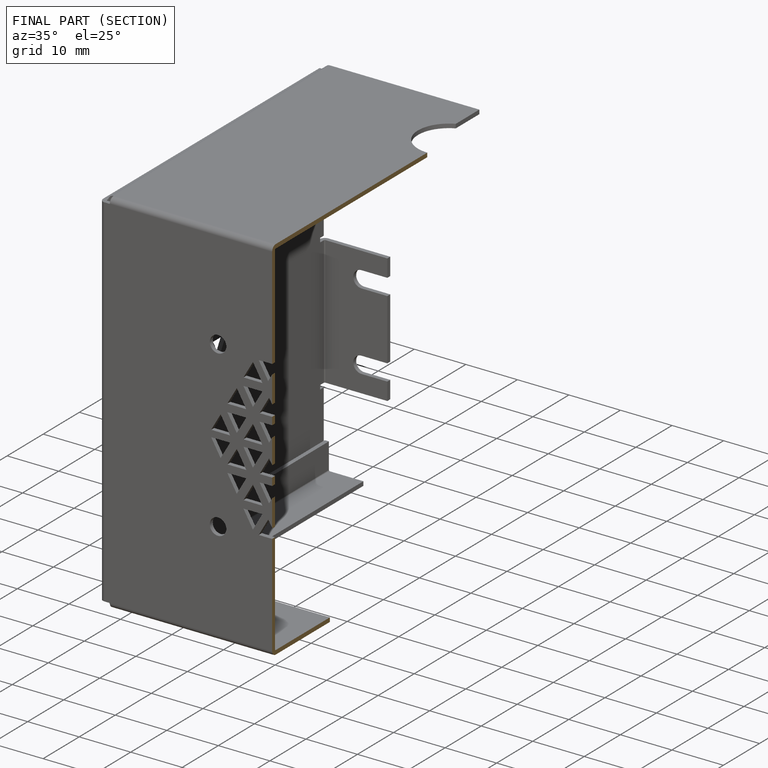
[diagram: finished part — half-section view (interior)]
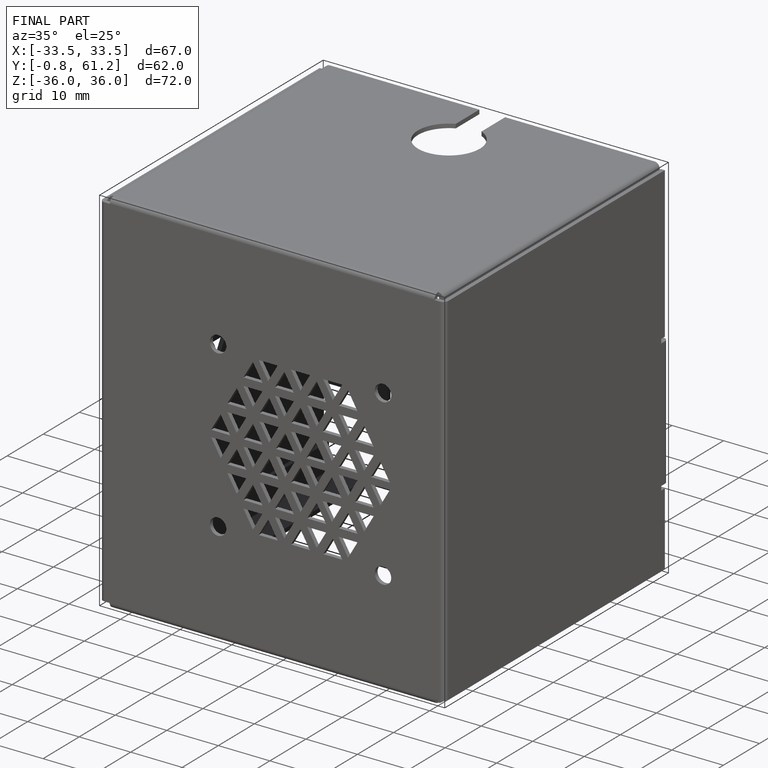
[diagram: finished part — iso view with bounding-box wireframe]
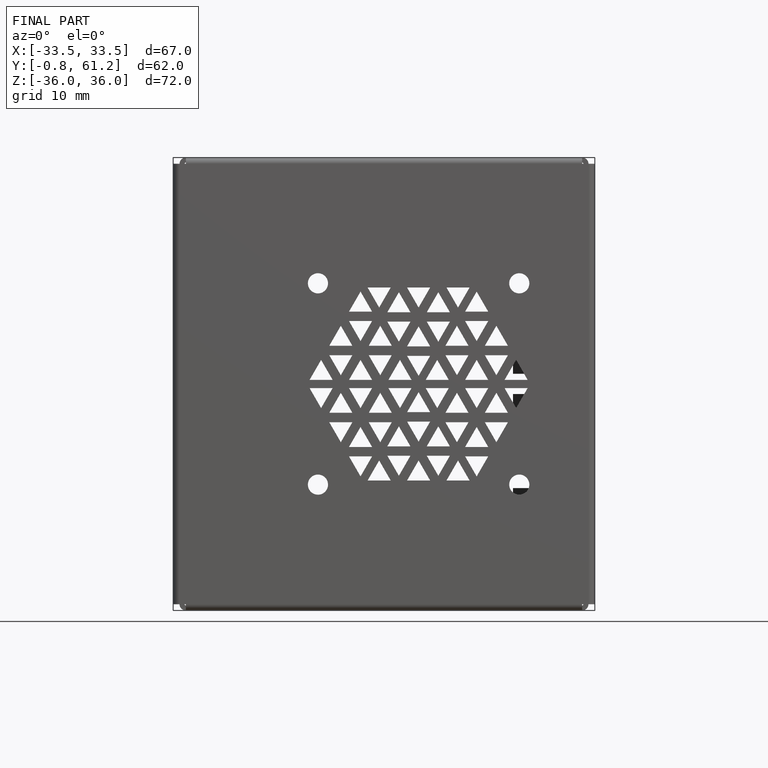
[diagram: finished part — front view with bounding-box wireframe]
